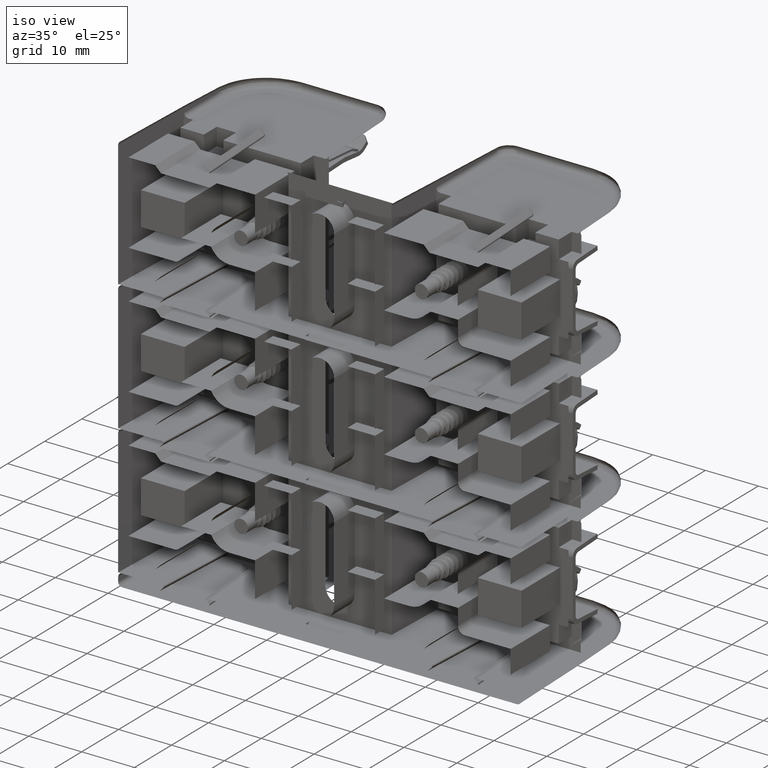
[diagram: clean part render]
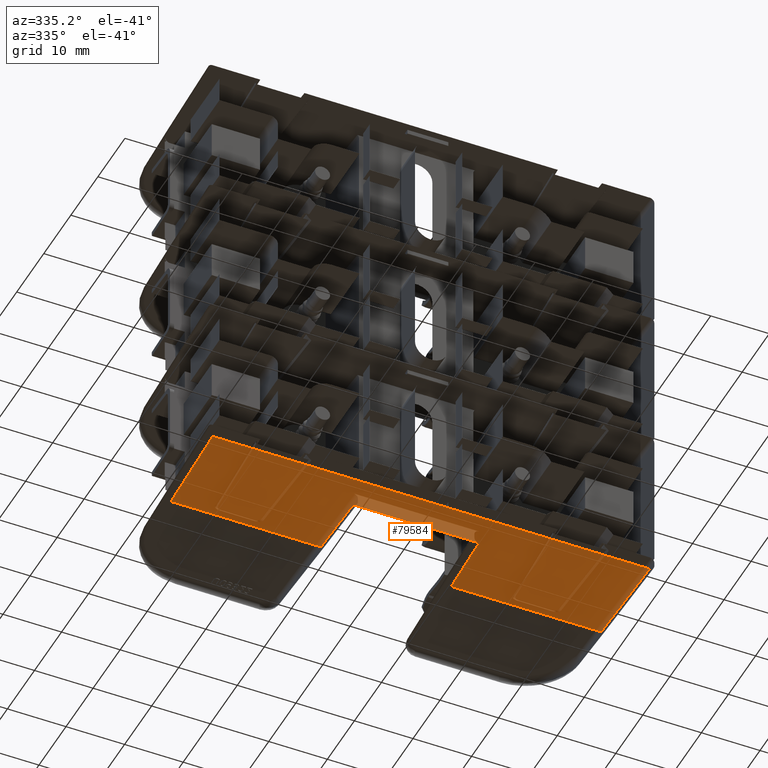
[diagram: tour spotlight — one face highlighted and labeled with its STEP entity id]
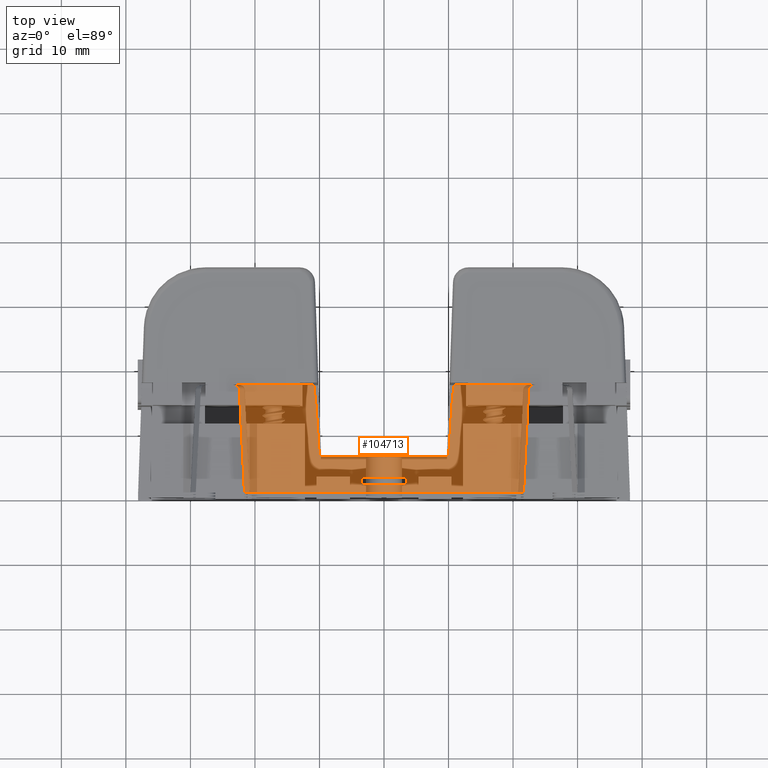
[diagram: tour spotlight — one face highlighted and labeled with its STEP entity id]
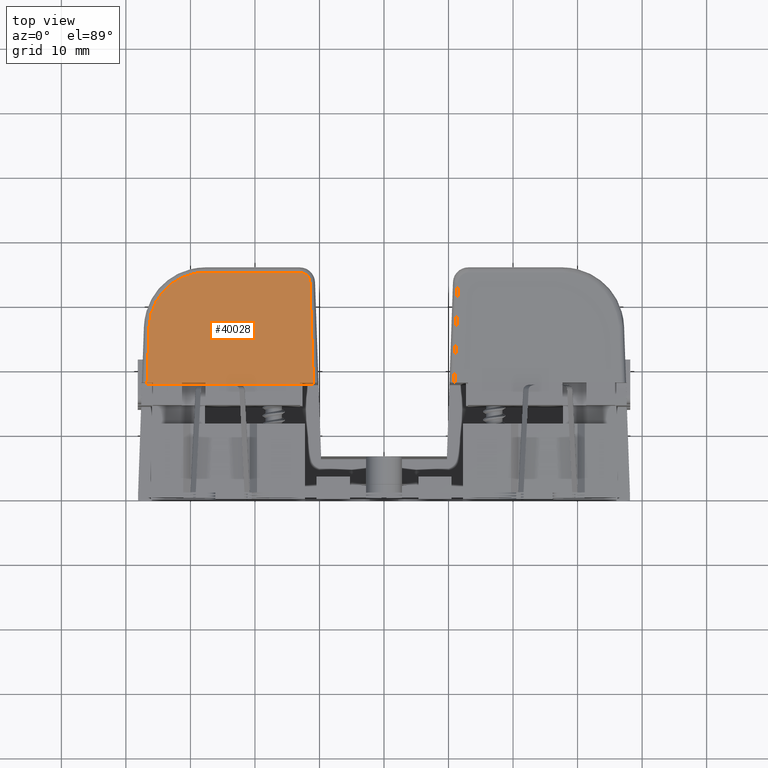
[diagram: tour spotlight — one face highlighted and labeled with its STEP entity id]
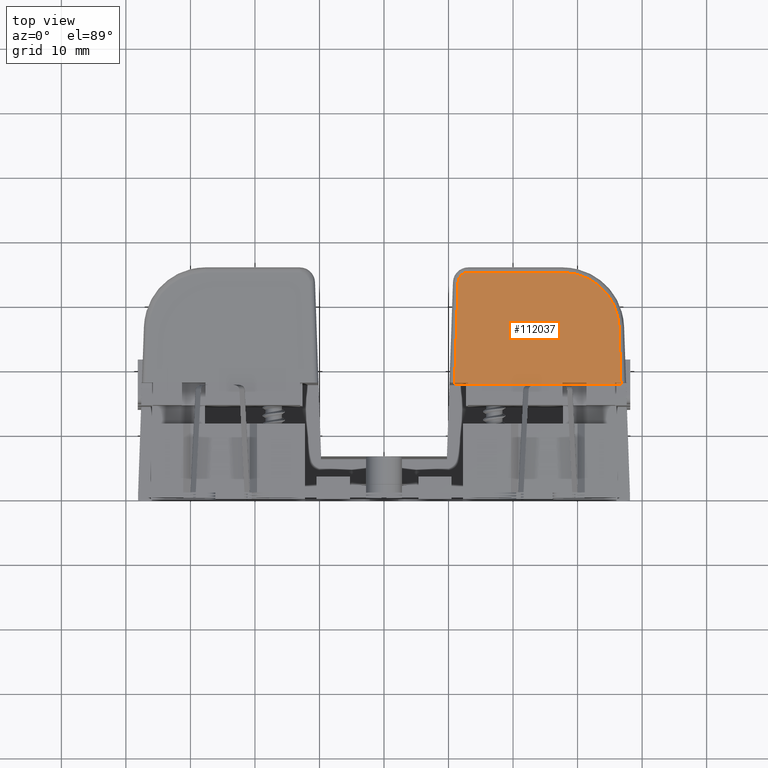
[diagram: tour spotlight — one face highlighted and labeled with its STEP entity id]
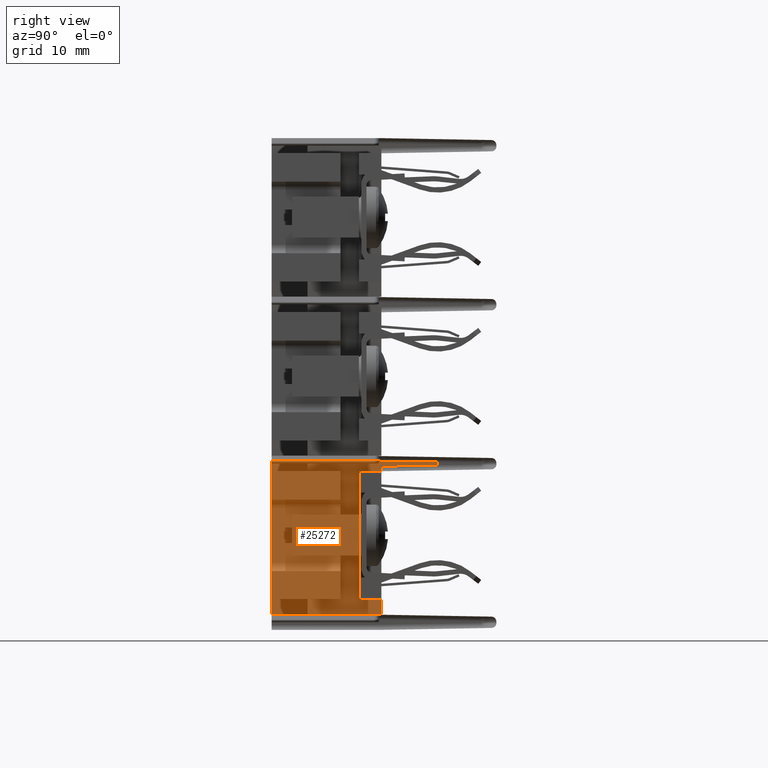
[diagram: tour spotlight — one face highlighted and labeled with its STEP entity id]
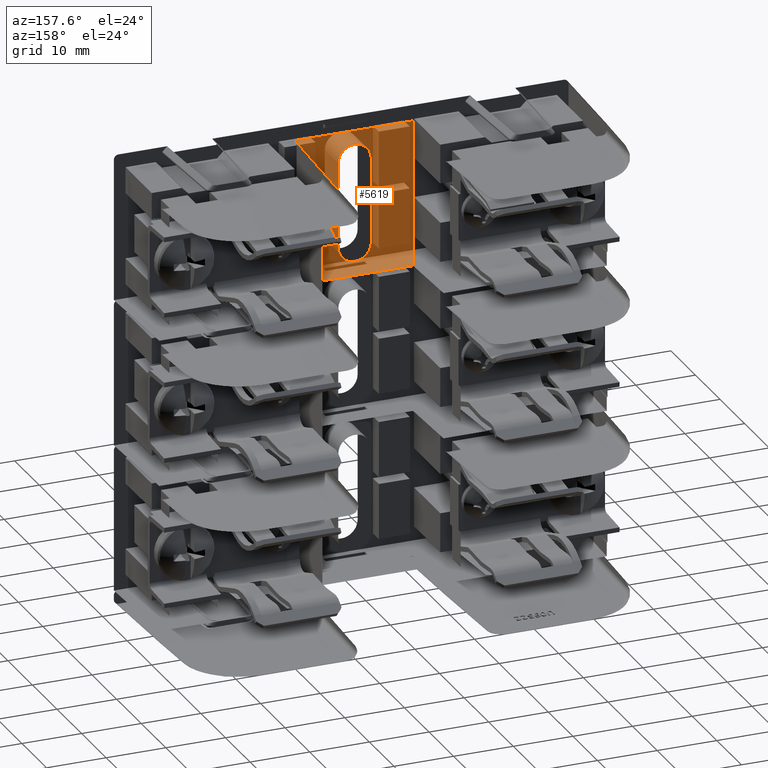
[diagram: tour spotlight — one face highlighted and labeled with its STEP entity id]
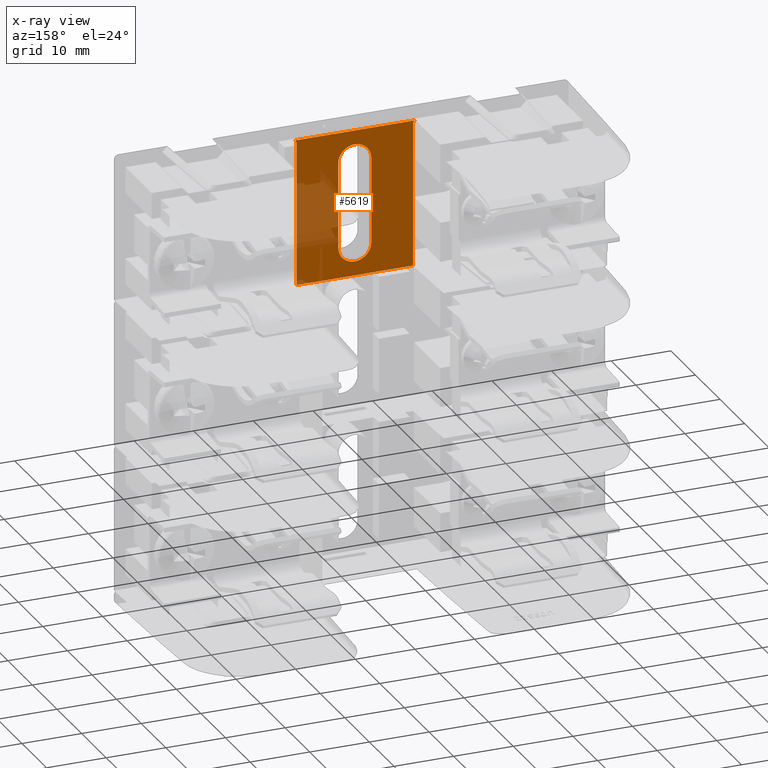
[diagram: x-ray of the same camera — body ghosted, this tour face saturated]
A machine part: a face-by-face anatomy tour. The part has 2342 B-rep faces; the first image is the clean iso view, then the 6 largest visible faces are spotlighted one at a time (largest first), each with its STEP entity span.

Face 1 — auxiliary view, entity #79584. In plain terms, the highlighted planar face has unit normal (0, 0, 1).
Definition (entity closure, byte-faithful):
#6530 = EDGE_CURVE ( 'NONE', #102638, #109156, #22613, .T. ) ;
#7340 = DIRECTION ( 'NONE',  ( -1.000000000000000000, -0.0000000000000000000, 0.0000000000000000000 ) ) ;
#7759 = DIRECTION ( 'NONE',  ( 1.000000000000000000, 0.0000000000000000000, -0.0000000000000000000 ) ) ;
#11457 = LINE ( 'NONE', #17087, #60960 ) ;
#12110 = CARTESIAN_POINT ( 'NONE',  ( -1.446082526557243200, 0.6559999793982642700, -1.014497639274923900 ) ) ;
#13697 = VECTOR ( 'NONE', #34997, 39.37007874015748100 ) ;
#17087 = CARTESIAN_POINT ( 'NONE',  ( 1.500000000000000200, 0.0000000000000000000, -1.014500000000000000 ) ) ;
#17355 = PLANE ( 'NONE',  #30203 ) ;
#17554 = FACE_OUTER_BOUND ( 'NONE', #21973, .T. ) ;
#20278 = CARTESIAN_POINT ( 'NONE',  ( 1.468981104126736700, 0.0000000000000000000, -1.014500000000000000 ) ) ;
#20520 = VECTOR ( 'NONE', #7340, 39.37007874015748100 ) ;
#21174 = ORIENTED_EDGE ( 'NONE', *, *, #74925, .T. ) ;
#21261 = EDGE_CURVE ( 'NONE', #76147, #25467, #92438, .T. ) ;
#21774 = CARTESIAN_POINT ( 'NONE',  ( 0.4379174734427561100, 0.6557294670984865600, -1.014500000000000000 ) ) ;
#21973 = EDGE_LOOP ( 'NONE', ( #86401, #21174, #23121, #88694, #118091, #24180, #30232, #65704 ) ) ;
#22613 = LINE ( 'NONE', #21774, #45793 ) ;
#23121 = ORIENTED_EDGE ( 'NONE', *, *, #70066, .T. ) ;
#24180 = ORIENTED_EDGE ( 'NONE', *, *, #30378, .T. ) ;
#25467 = VERTEX_POINT ( 'NONE', #111408 ) ;
#28700 = DIRECTION ( 'NONE',  ( -1.000000000000000000, -0.0000000000000000000, 0.0000000000000000000 ) ) ;
#29505 = LINE ( 'NONE', #93637, #82014 ) ;
#30203 = AXIS2_PLACEMENT_3D ( 'NONE', #126127, #67041, #7759 ) ;
#30232 = ORIENTED_EDGE ( 'NONE', *, *, #37362, .T. ) ;
#30378 = EDGE_CURVE ( 'NONE', #68804, #108886, #72739, .T. ) ;
#32457 = DIRECTION ( 'NONE',  ( -1.000000000000000000, -0.0000000000000000000, 0.0000000000000000000 ) ) ;
#34551 = DIRECTION ( 'NONE',  ( -0.03489949670250072600, 0.9993908270190957600, 0.0000000000000000000 ) ) ;
#34997 = DIRECTION ( 'NONE',  ( -0.03489949670249987300, -0.9993908270190957600, 0.0000000000000000000 ) ) ;
#37362 = EDGE_CURVE ( 'NONE', #108886, #102638, #65848, .T. ) ;
#44401 = VECTOR ( 'NONE', #28700, 39.37007874015748100 ) ;
#45793 = VECTOR ( 'NONE', #72658, 39.37007874015748900 ) ;
#46801 = LINE ( 'NONE', #88059, #20520 ) ;
#48129 = EDGE_CURVE ( 'NONE', #109156, #94731, #46801, .T. ) ;
#56664 = EDGE_CURVE ( 'NONE', #25467, #68804, #11457, .T. ) ;
#60960 = VECTOR ( 'NONE', #86101, 39.37007874015748100 ) ;
#62757 = VECTOR ( 'NONE', #32457, 39.37007874015748100 ) ;
#65704 = ORIENTED_EDGE ( 'NONE', *, *, #6530, .T. ) ;
#65848 = LINE ( 'NONE', #101035, #62757 ) ;
#66371 = CARTESIAN_POINT ( 'NONE',  ( 1.468981104126736700, 0.0000000000000000000, -1.014500000000000000 ) ) ;
#67041 = DIRECTION ( 'NONE',  ( 0.0000000000000000000, 0.0000000000000000000, 1.000000000000000000 ) ) ;
#68804 = VERTEX_POINT ( 'NONE', #66371 ) ;
#70066 = EDGE_CURVE ( 'NONE', #81950, #76147, #99879, .T. ) ;
#72658 = DIRECTION ( 'NONE',  ( -0.03489949670250103900, -0.9993908270190957600, 0.0000000000000000000 ) ) ;
#72739 = LINE ( 'NONE', #20278, #95839 ) ;
#74925 = EDGE_CURVE ( 'NONE', #94731, #81950, #29505, .T. ) ;
#76147 = VERTEX_POINT ( 'NONE', #12110 ) ;
#77453 = CARTESIAN_POINT ( 'NONE',  ( 0.4379174734427562800, 0.6559999793982643800, -1.014497639274924100 ) ) ;
#77884 = CARTESIAN_POINT ( 'NONE',  ( 1.500000000000000200, 0.6557294670984865600, -1.014500000000000000 ) ) ;
#79584 = ADVANCED_FACE ( 'NONE', ( #17554 ), #17355, .T. ) ;
#81950 = VERTEX_POINT ( 'NONE', #122658 ) ;
#82014 = VECTOR ( 'NONE', #34551, 39.37007874015748900 ) ;
#86101 = DIRECTION ( 'NONE',  ( 1.000000000000000000, 0.0000000000000000000, -0.0000000000000000000 ) ) ;
#86401 = ORIENTED_EDGE ( 'NONE', *, *, #48129, .T. ) ;
#88059 = CARTESIAN_POINT ( 'NONE',  ( 1.500000000000000200, 0.2179999999999996400, -1.014500000000000000 ) ) ;
#88694 = ORIENTED_EDGE ( 'NONE', *, *, #21261, .T. ) ;
#92438 = LINE ( 'NONE', #104043, #13697 ) ;
#93637 = CARTESIAN_POINT ( 'NONE',  ( -0.4226316236224647000, 0.2179999999999996400, -1.014500000000000000 ) ) ;
#94731 = VERTEX_POINT ( 'NONE', #104031 ) ;
#95839 = VECTOR ( 'NONE', #99175, 39.37007874015748100 ) ;
#99175 = DIRECTION ( 'NONE',  ( -0.03489949670250112200, 0.9993908270190957600, 0.0000000000000000000 ) ) ;
#99879 = LINE ( 'NONE', #77884, #44401 ) ;
#101035 = CARTESIAN_POINT ( 'NONE',  ( 1.500000000000000200, 0.6557294670984865600, -1.014500000000000000 ) ) ;
#102638 = VERTEX_POINT ( 'NONE', #77453 ) ;
#104031 = CARTESIAN_POINT ( 'NONE',  ( -0.4226316236224647000, 0.2179999999999996400, -1.014500000000000000 ) ) ;
#104043 = CARTESIAN_POINT ( 'NONE',  ( -1.446082526557243200, 0.6557294670984865600, -1.014500000000000000 ) ) ;
#108886 = VERTEX_POINT ( 'NONE', #111851 ) ;
#109156 = VERTEX_POINT ( 'NONE', #124331 ) ;
#111408 = CARTESIAN_POINT ( 'NONE',  ( -1.468981104126735800, 0.0000000000000000000, -1.014500000000000000 ) ) ;
#111851 = CARTESIAN_POINT ( 'NONE',  ( 1.446082526557243500, 0.6559999793982641500, -1.014497639274923900 ) ) ;
#118091 = ORIENTED_EDGE ( 'NONE', *, *, #56664, .T. ) ;
#122658 = CARTESIAN_POINT ( 'NONE',  ( -0.4379174734427565600, 0.6559999793982644900, -1.014497639274924100 ) ) ;
#124331 = CARTESIAN_POINT ( 'NONE',  ( 0.4226316236224642600, 0.2179999999999996400, -1.014500000000000000 ) ) ;
#126127 = CARTESIAN_POINT ( 'NONE',  ( 1.500000000000000200, 0.0000000000000000000, -1.014500000000000000 ) ) ;

Face 2 — top view, entity #104713. In plain terms, the highlighted planar face has unit normal (0, 0, -1).
Definition (entity closure, byte-faithful):
#65 = VERTEX_POINT ( 'NONE', #124539 ) ;
#118 = CARTESIAN_POINT ( 'NONE',  ( 0.1375000000000000900, 0.0000000000000000000, 1.986499999999999900 ) ) ;
#3693 = ORIENTED_EDGE ( 'NONE', *, *, #27616, .T. ) ;
#5294 = CARTESIAN_POINT ( 'NONE',  ( -0.3946083140209540900, 0.2179999999999996700, 1.986499999999999900 ) ) ;
#5528 = VECTOR ( 'NONE', #96669, 39.37007874015748100 ) ;
#5877 = EDGE_CURVE ( 'NONE', #87794, #118547, #39752, .T. ) ;
#6066 = DIRECTION ( 'NONE',  ( -1.000000000000000000, 0.0000000000000000000, -0.0000000000000000000 ) ) ;
#6633 = DIRECTION ( 'NONE',  ( 1.000000000000000000, -0.0000000000000000000, 0.0000000000000000000 ) ) ;
#7161 = DIRECTION ( 'NONE',  ( 1.000000000000000000, -0.0000000000000000000, 0.0000000000000000000 ) ) ;
#7756 = CARTESIAN_POINT ( 'NONE',  ( 1.500000000000000200, 0.0000000000000000000, 1.986499999999999900 ) ) ;
#9177 = EDGE_CURVE ( 'NONE', #23511, #37330, #94136, .T. ) ;
#9996 = VECTOR ( 'NONE', #7161, 39.37007874015748100 ) ;
#10262 = CARTESIAN_POINT ( 'NONE',  ( -0.8515000000000010300, -6.669545818764882400E-020, 1.986499999999999700 ) ) ;
#10616 = EDGE_LOOP ( 'NONE', ( #83866, #94190, #126881, #3693 ) ) ;
#12015 = VERTEX_POINT ( 'NONE', #108979 ) ;
#14074 = CARTESIAN_POINT ( 'NONE',  ( 0.3946083140209538700, 0.2179999999999996400, 1.986499999999999900 ) ) ;
#15131 = EDGE_CURVE ( 'NONE', #72905, #40067, #127313, .T. ) ;
#15495 = EDGE_CURVE ( 'NONE', #40067, #126032, #65722, .T. ) ;
#17830 = EDGE_CURVE ( 'NONE', #37330, #65, #30664, .T. ) ;
#18994 = VECTOR ( 'NONE', #31868, 39.37007874015748100 ) ;
#19138 = EDGE_CURVE ( 'NONE', #36050, #65, #44327, .T. ) ;
#20674 = CARTESIAN_POINT ( 'NONE',  ( -0.9006972032994289300, 0.6559999999999998100, 1.986499999999999700 ) ) ;
#21071 = CARTESIAN_POINT ( 'NONE',  ( -0.4302952999153155700, 0.6559999999999996900, 1.986499999999999900 ) ) ;
#21469 = EDGE_CURVE ( 'NONE', #118547, #69651, #79977, .T. ) ;
#22027 = VECTOR ( 'NONE', #52753, 39.37007874015748100 ) ;
#23511 = VERTEX_POINT ( 'NONE', #98992 ) ;
#27616 = EDGE_CURVE ( 'NONE', #12015, #72905, #30914, .T. ) ;
#29741 = DIRECTION ( 'NONE',  ( 1.000000000000000000, -0.0000000000000000000, 0.0000000000000000000 ) ) ;
#30664 = LINE ( 'NONE', #79618, #83157 ) ;
#30914 = LINE ( 'NONE', #124389, #80340 ) ;
#31868 = DIRECTION ( 'NONE',  ( 1.000000000000000000, -0.0000000000000000000, 0.0000000000000000000 ) ) ;
#32241 = CARTESIAN_POINT ( 'NONE',  ( 0.4102892772347351800, 0.5035276966052659700, 1.986499999999999700 ) ) ;
#33814 = DIRECTION ( 'NONE',  ( 0.0000000000000000000, 0.0000000000000000000, -1.000000000000000000 ) ) ;
#34805 = EDGE_CURVE ( 'NONE', #83762, #77336, #70994, .T. ) ;
#36050 = VERTEX_POINT ( 'NONE', #10262 ) ;
#36691 = CARTESIAN_POINT ( 'NONE',  ( -0.1375000000000000400, 0.04700000000000000700, 1.986499999999999900 ) ) ;
#36987 = CARTESIAN_POINT ( 'NONE',  ( 1.500000000000000200, 0.2179999999999996400, 1.986499999999999900 ) ) ;
#37330 = VERTEX_POINT ( 'NONE', #120923 ) ;
#38878 = EDGE_CURVE ( 'NONE', #77336, #118015, #66173, .T. ) ;
#38967 = CARTESIAN_POINT ( 'NONE',  ( 0.8833105150937808900, 0.6441275854807315700, 1.986499999999999500 ) ) ;
#39752 =( BOUNDED_CURVE ( )  B_SPLINE_CURVE ( 3, ( #40612, #89702, #20674, #50508 ),
 .UNSPECIFIED., .F., .F. ) 
 B_SPLINE_CURVE_WITH_KNOTS ( ( 4, 4 ),
 ( 0.03490658503989001200, 1.570796326794887000 ),
 .UNSPECIFIED. ) 
 CURVE ( )  GEOMETRIC_REPRESENTATION_ITEM ( )  RATIONAL_B_SPLINE_CURVE ( ( 1.000000000000000000, 0.8128932002257702700, 0.8128932002257702700, 1.000000000000000000 ) ) 
 REPRESENTATION_ITEM ( '' )  );
#40067 = VERTEX_POINT ( 'NONE', #36691 ) ;
#40469 = CARTESIAN_POINT ( 'NONE',  ( -0.8824669823608298800, 0.6270469849010752400, 1.986499999999999900 ) ) ;
#40612 = CARTESIAN_POINT ( 'NONE',  ( -0.8824669823608298800, 0.6270469849010752400, 1.986499999999999900 ) ) ;
#42175 = ORIENTED_EDGE ( 'NONE', *, *, #34805, .T. ) ;
#44327 = LINE ( 'NONE', #7756, #5528 ) ;
#49251 = ORIENTED_EDGE ( 'NONE', *, *, #17830, .T. ) ;
#50508 = CARTESIAN_POINT ( 'NONE',  ( -0.9248675442112799200, 0.6560000000000000300, 1.986499999999999900 ) ) ;
#50658 = VECTOR ( 'NONE', #29741, 39.37007874015748100 ) ;
#50723 = VECTOR ( 'NONE', #87812, 39.37007874015748100 ) ;
#51782 = EDGE_CURVE ( 'NONE', #69651, #83762, #95407, .T. ) ;
#52666 = EDGE_LOOP ( 'NONE', ( #105819, #93706, #117606, #42175, #53483, #115494, #106721, #49251, #70002, #80532 ) ) ;
#52753 = DIRECTION ( 'NONE',  ( -0.04932531220227890500, 0.9987827659587182900, 0.0000000000000000000 ) ) ;
#53483 = ORIENTED_EDGE ( 'NONE', *, *, #38878, .T. ) ;
#54609 = CARTESIAN_POINT ( 'NONE',  ( -0.4227122839482715400, 0.6559999999999968100, 1.986500000000000200 ) ) ;
#57438 = EDGE_CURVE ( 'NONE', #36050, #87794, #74544, .T. ) ;
#58498 = DIRECTION ( 'NONE',  ( -0.04932531220227890500, -0.9987827659587182900, 0.0000000000000000000 ) ) ;
#60143 = FACE_BOUND ( 'NONE', #10616, .T. ) ;
#62068 = CARTESIAN_POINT ( 'NONE',  ( 0.3946083140209538700, 0.2179999999999996400, 1.986499999999999900 ) ) ;
#65722 = LINE ( 'NONE', #106086, #9996 ) ;
#66173 =( BOUNDED_CURVE ( )  B_SPLINE_CURVE ( 3, ( #62068, #32241, #121140, #71927 ),
 .UNSPECIFIED., .F., .F. ) 
 B_SPLINE_CURVE_WITH_KNOTS ( ( 4, 4 ),
 ( 2.423426612368076800, 3.140983573351228100 ),
 .UNSPECIFIED. ) 
 CURVE ( )  GEOMETRIC_REPRESENTATION_ITEM ( )  RATIONAL_B_SPLINE_CURVE ( ( 1.000000000000000000, 0.9575509567925388800, 0.9575509567925388800, 1.000000000000000000 ) ) 
 REPRESENTATION_ITEM ( '' )  );
#67927 = VECTOR ( 'NONE', #6633, 39.37007874015748100 ) ;
#69014 = EDGE_CURVE ( 'NONE', #126032, #12015, #126361, .T. ) ;
#69651 = VERTEX_POINT ( 'NONE', #21071 ) ;
#70002 = ORIENTED_EDGE ( 'NONE', *, *, #19138, .F. ) ;
#70994 = LINE ( 'NONE', #36987, #67927 ) ;
#71927 = CARTESIAN_POINT ( 'NONE',  ( 0.4302952999153157900, 0.6560000000000065800, 1.986499999999999900 ) ) ;
#72905 = VERTEX_POINT ( 'NONE', #90973 ) ;
#73123 = CARTESIAN_POINT ( 'NONE',  ( 0.8824669823608297700, 0.6270469849010749100, 1.986499999999999900 ) ) ;
#74544 = LINE ( 'NONE', #81645, #22027 ) ;
#74810 = VECTOR ( 'NONE', #100916, 39.37007874015748100 ) ;
#77336 = VERTEX_POINT ( 'NONE', #14074 ) ;
#78935 = CARTESIAN_POINT ( 'NONE',  ( 1.500000000000000200, 0.6560000000000000300, 1.986499999999999900 ) ) ;
#79618 = CARTESIAN_POINT ( 'NONE',  ( 0.8824669823608298800, 0.6270469849010751300, 1.986499999999999900 ) ) ;
#79977 = LINE ( 'NONE', #78935, #50658 ) ;
#80340 = VECTOR ( 'NONE', #6066, 39.37007874015748100 ) ;
#80532 = ORIENTED_EDGE ( 'NONE', *, *, #57438, .T. ) ;
#81318 = CARTESIAN_POINT ( 'NONE',  ( -0.9248675442112799200, 0.6560000000000000300, 1.986499999999999900 ) ) ;
#81645 = CARTESIAN_POINT ( 'NONE',  ( -0.8515000000000012600, 0.0000000000000000000, 1.986499999999999900 ) ) ;
#82589 = PLANE ( 'NONE',  #112941 ) ;
#83157 = VECTOR ( 'NONE', #58498, 39.37007874015748100 ) ;
#83762 = VERTEX_POINT ( 'NONE', #87432 ) ;
#83866 = ORIENTED_EDGE ( 'NONE', *, *, #15131, .T. ) ;
#87432 = CARTESIAN_POINT ( 'NONE',  ( -0.3946083140209540900, 0.2179999999999996700, 1.986499999999999900 ) ) ;
#87794 = VERTEX_POINT ( 'NONE', #40469 ) ;
#87812 = DIRECTION ( 'NONE',  ( 0.0000000000000000000, 1.000000000000000000, 0.0000000000000000000 ) ) ;
#89702 = CARTESIAN_POINT ( 'NONE',  ( -0.8833105150937813300, 0.6441275854807315700, 1.986499999999999700 ) ) ;
#90973 = CARTESIAN_POINT ( 'NONE',  ( -0.1375000000000000400, 0.08699999999999999400, 1.986499999999999900 ) ) ;
#92901 = CARTESIAN_POINT ( 'NONE',  ( 1.500000000000000200, 0.0000000000000000000, 1.986499999999999900 ) ) ;
#93026 = CARTESIAN_POINT ( 'NONE',  ( 0.4302952999153157900, 0.6560000000000065800, 1.986499999999999900 ) ) ;
#93706 = ORIENTED_EDGE ( 'NONE', *, *, #21469, .T. ) ;
#94136 =( BOUNDED_CURVE ( )  B_SPLINE_CURVE ( 3, ( #97962, #108420, #38967, #73123 ),
 .UNSPECIFIED., .F., .F. ) 
 B_SPLINE_CURVE_WITH_KNOTS ( ( 4, 4 ),
 ( 4.712388980384689700, 6.248278722139705400 ),
 .UNSPECIFIED. ) 
 CURVE ( )  GEOMETRIC_REPRESENTATION_ITEM ( )  RATIONAL_B_SPLINE_CURVE ( ( 1.000000000000000000, 0.8128932002257661700, 0.8128932002257661700, 1.000000000000000000 ) ) 
 REPRESENTATION_ITEM ( '' )  );
#94190 = ORIENTED_EDGE ( 'NONE', *, *, #15495, .T. ) ;
#95163 = EDGE_CURVE ( 'NONE', #118015, #23511, #120950, .T. ) ;
#95407 =( BOUNDED_CURVE ( )  B_SPLINE_CURVE ( 3, ( #123603, #54609, #113699, #5294 ),
 .UNSPECIFIED., .F., .F. ) 
 B_SPLINE_CURVE_WITH_KNOTS ( ( 4, 4 ),
 ( 0.0006090802385741380000, 0.7181660412217143500 ),
 .UNSPECIFIED. ) 
 CURVE ( )  GEOMETRIC_REPRESENTATION_ITEM ( )  RATIONAL_B_SPLINE_CURVE ( ( 1.000000000000000000, 0.9575509567925402100, 0.9575509567925402100, 1.000000000000000000 ) ) 
 REPRESENTATION_ITEM ( '' )  );
#96669 = DIRECTION ( 'NONE',  ( 1.000000000000000000, 0.0000000000000000000, 0.0000000000000000000 ) ) ;
#97962 = CARTESIAN_POINT ( 'NONE',  ( 0.9248675442112800300, 0.6560000000000000300, 1.986499999999999900 ) ) ;
#98992 = CARTESIAN_POINT ( 'NONE',  ( 0.9248675442112800300, 0.6560000000000000300, 1.986499999999999900 ) ) ;
#100851 = CARTESIAN_POINT ( 'NONE',  ( 1.500000000000000200, 0.6560000000000000300, 1.986499999999999900 ) ) ;
#100916 = DIRECTION ( 'NONE',  ( -0.0000000000000000000, -1.000000000000000000, -0.0000000000000000000 ) ) ;
#102875 = DIRECTION ( 'NONE',  ( -1.000000000000000000, 0.0000000000000000000, -0.0000000000000000000 ) ) ;
#104713 = ADVANCED_FACE ( 'NONE', ( #109527, #60143 ), #82589, .T. ) ;
#105819 = ORIENTED_EDGE ( 'NONE', *, *, #5877, .T. ) ;
#106086 = CARTESIAN_POINT ( 'NONE',  ( 1.500000000000000200, 0.04699999999999999300, 1.986499999999999900 ) ) ;
#106721 = ORIENTED_EDGE ( 'NONE', *, *, #9177, .T. ) ;
#108420 = CARTESIAN_POINT ( 'NONE',  ( 0.9006972032994290400, 0.6560000000000001400, 1.986499999999999500 ) ) ;
#108979 = CARTESIAN_POINT ( 'NONE',  ( 0.1375000000000000400, 0.08699999999999999400, 1.986499999999999900 ) ) ;
#109527 = FACE_OUTER_BOUND ( 'NONE', #52666, .T. ) ;
#112305 = CARTESIAN_POINT ( 'NONE',  ( 0.1375000000000000400, 0.04700000000000000700, 1.986499999999999900 ) ) ;
#112941 = AXIS2_PLACEMENT_3D ( 'NONE', #92901, #33814, #102875 ) ;
#113699 = CARTESIAN_POINT ( 'NONE',  ( -0.4102892772347349100, 0.5035276966052491000, 1.986500000000000200 ) ) ;
#115494 = ORIENTED_EDGE ( 'NONE', *, *, #95163, .T. ) ;
#117606 = ORIENTED_EDGE ( 'NONE', *, *, #51782, .T. ) ;
#118015 = VERTEX_POINT ( 'NONE', #93026 ) ;
#118547 = VERTEX_POINT ( 'NONE', #81318 ) ;
#120413 = CARTESIAN_POINT ( 'NONE',  ( -0.1375000000000000900, 0.0000000000000000000, 1.986499999999999900 ) ) ;
#120923 = CARTESIAN_POINT ( 'NONE',  ( 0.8824669823608297700, 0.6270469849010749100, 1.986499999999999900 ) ) ;
#120950 = LINE ( 'NONE', #100851, #18994 ) ;
#121140 = CARTESIAN_POINT ( 'NONE',  ( 0.4227122839482720900, 0.6560000000000145700, 1.986499999999999700 ) ) ;
#123603 = CARTESIAN_POINT ( 'NONE',  ( -0.4302952999153155700, 0.6559999999999996900, 1.986499999999999900 ) ) ;
#124389 = CARTESIAN_POINT ( 'NONE',  ( 1.500000000000000200, 0.08699999999999999400, 1.986499999999999900 ) ) ;
#124539 = CARTESIAN_POINT ( 'NONE',  ( 0.8515000000000012600, -3.414809992080329000E-017, 1.986499999999999900 ) ) ;
#126032 = VERTEX_POINT ( 'NONE', #112305 ) ;
#126361 = LINE ( 'NONE', #118, #50723 ) ;
#126881 = ORIENTED_EDGE ( 'NONE', *, *, #69014, .T. ) ;
#127313 = LINE ( 'NONE', #120413, #74810 ) ;

Face 3 — top view, entity #40028. In plain terms, the highlighted planar face has unit normal (0, -0.0175, -0.9998).
Definition (entity closure, byte-faithful):
#1053 = VECTOR ( 'NONE', #90118, 39.37007874015748100 ) ;
#2668 = CARTESIAN_POINT ( 'NONE',  ( -0.4521453927753435500, 1.281704793395110700, 1.975578282205391800 ) ) ;
#2797 = AXIS2_PLACEMENT_3D ( 'NONE', #95293, #36242, #105290 ) ;
#3093 = CARTESIAN_POINT ( 'NONE',  ( -0.4602799726756141600, 1.310443878379387900, 1.975076639611013500 ) ) ;
#6120 = CARTESIAN_POINT ( 'NONE',  ( -1.427898740956051100, 1.061899306718431900, 1.979415001246910500 ) ) ;
#6532 = CARTESIAN_POINT ( 'NONE',  ( -1.384391516521215500, 1.175589083102219100, 1.977430538818457900 ) ) ;
#6962 = CARTESIAN_POINT ( 'NONE',  ( -1.250298313294746100, 1.302259530460969200, 1.975219497935325000 ) ) ;
#7401 = CARTESIAN_POINT ( 'NONE',  ( -1.131085381475615900, 1.339696284668232100, 1.974566036959935400 ) ) ;
#9249 = CARTESIAN_POINT ( 'NONE',  ( -1.442504797954785600, 0.7587232341355288900, 1.984706959278528000 ) ) ;
#9613 = EDGE_CURVE ( 'NONE', #105963, #39693, #31067, .T. ) ;
#10211 = LINE ( 'NONE', #9249, #85896 ) ;
#11132 = CARTESIAN_POINT ( 'NONE',  ( -0.4521453927753435500, 1.281704793395110700, 1.975578282205391600 ) ) ;
#13068 = CARTESIAN_POINT ( 'NONE',  ( -0.4579476475622539800, 1.305831391993151700, 1.975157150860366300 ) ) ;
#15267 = ORIENTED_EDGE ( 'NONE', *, *, #96909, .T. ) ;
#15738 = LINE ( 'NONE', #27102, #42135 ) ;
#16133 = CARTESIAN_POINT ( 'NONE',  ( -1.426620498650840800, 1.068210780368704200, 1.979304834064553800 ) ) ;
#16596 = CARTESIAN_POINT ( 'NONE',  ( -1.376757644826735800, 1.187510890907692400, 1.977222442889151600 ) ) ;
#17007 = CARTESIAN_POINT ( 'NONE',  ( -1.223333164263495300, 1.314654246426933700, 1.975003147363371100 ) ) ;
#17405 = CARTESIAN_POINT ( 'NONE',  ( -1.089955413704668800, 1.341541024599555600, 1.974533836904658300 ) ) ;
#18099 = VECTOR ( 'NONE', #58220, 39.37007874015748100 ) ;
#19378 = CARTESIAN_POINT ( 'NONE',  ( -1.446082525837534500, 0.6559999999999798200, 1.986499999041639000 ) ) ;
#21071 = CARTESIAN_POINT ( 'NONE',  ( -0.4302952999153155700, 0.6559999999999996900, 1.986499999999999900 ) ) ;
#21469 = EDGE_CURVE ( 'NONE', #118547, #69651, #79977, .T. ) ;
#22589 = CARTESIAN_POINT ( 'NONE',  ( -0.5045502073887151400, 1.341014030370826200, 1.974543035623137300 ) ) ;
#23016 = CARTESIAN_POINT ( 'NONE',  ( -0.4540734351995517900, 1.296846914225082900, 1.975313975503152800 ) ) ;
#24895 = ORIENTED_EDGE ( 'NONE', *, *, #83265, .T. ) ;
#26076 = CARTESIAN_POINT ( 'NONE',  ( -1.423759161688232400, 1.081388904031926400, 1.979074809060379400 ) ) ;
#26482 = CARTESIAN_POINT ( 'NONE',  ( -1.360475337552975700, 1.211297565883954000, 1.976807244933014700 ) ) ;
#26931 = CARTESIAN_POINT ( 'NONE',  ( -1.216765310734134700, 1.317317834801433600, 1.974956654255352500 ) ) ;
#27102 = CARTESIAN_POINT ( 'NONE',  ( 1.500000000000000200, 0.6560000000000000300, 1.986499999999999900 ) ) ;
#29741 = DIRECTION ( 'NONE',  ( 1.000000000000000000, -0.0000000000000000000, 0.0000000000000000000 ) ) ;
#31067 = B_SPLINE_CURVE_WITH_KNOTS ( 'NONE', 3,
 ( #55442, #45504, #104622, #65383, #6120, #75248, #16133, #85164, #26076, #95048, #35986, #105053, #45951, #114959, #55859, #124885, #65827, #6532, #75660, #16596, #85586, #26482, #95477, #36434, #105476, #46361, #115391, #56265, #125306, #66259, #6962, #76069, #17007, #86006, #26931, #95893, #36879, #105900, #46787, #115804, #56705, #125740, #66669, #7401, #76527, #17405 ),
 .UNSPECIFIED., .F., .F.,
 ( 4, 1, 1, 1, 2, 2, 1, 1, 1, 2, 2, 1, 1, 2, 2, 2, 1, 1, 2, 2, 1, 1, 1, 2, 2, 1, 1, 1, 2, 2, 4 ),
 ( 0.0000000000000000000, 0.06249999999999902900, 0.09374999999999823800, 0.1093749999999982700, 0.1171874999999982700, 0.1249999999999982800, 0.1874999999999990300, 0.2187499999999996100, 0.2343749999999996700, 0.2421874999999993100, 0.2499999999999990000, 0.3124999999999952300, 0.3437499999999937300, 0.3593749999999925100, 0.3749999999999913400, 0.4999999999999878400, 0.5624999999999855700, 0.5937499999999839000, 0.6093749999999830100, 0.6249999999999821300, 0.6874999999999833500, 0.7187499999999839000, 0.7343749999999842300, 0.7421874999999846800, 0.7499999999999851200, 0.8124999999999922300, 0.8437499999999957800, 0.8593749999999977800, 0.8671874999999982200, 0.8749999999999985600, 1.000000000000000000 ),
 .UNSPECIFIED. ) ;
#32518 = CARTESIAN_POINT ( 'NONE',  ( -0.4953463525147265300, 1.338643549441240100, 1.974584412521674300 ) ) ;
#32926 = CARTESIAN_POINT ( 'NONE',  ( -0.4521453927753435500, 1.281704793395110700, 1.975578282205391800 ) ) ;
#33120 = CARTESIAN_POINT ( 'NONE',  ( -1.075132455788722500, 0.6560000000000000300, 1.986499999999999700 ) ) ;
#35986 = CARTESIAN_POINT ( 'NONE',  ( -1.413319428926858500, 1.115120512983734500, 1.978486021635992500 ) ) ;
#36242 = DIRECTION ( 'NONE',  ( 0.0000000000000000000, -0.01745240643728331700, -0.9998476951563912700 ) ) ;
#36434 = CARTESIAN_POINT ( 'NONE',  ( -1.320591800673777800, 1.253035287595544200, 1.976078710290582800 ) ) ;
#36879 = CARTESIAN_POINT ( 'NONE',  ( -1.203949934830820700, 1.322288126443234900, 1.974869897492033600 ) ) ;
#39693 = VERTEX_POINT ( 'NONE', #99253 ) ;
#40028 = ADVANCED_FACE ( 'NONE', ( #117297 ), #94856, .T. ) ;
#41256 = EDGE_CURVE ( 'NONE', #72778, #105963, #10211, .T. ) ;
#42124 = CARTESIAN_POINT ( 'NONE',  ( -0.5141076240505273500, 1.341541024599555200, 1.974533836904658300 ) ) ;
#42135 = VECTOR ( 'NONE', #86185, 39.37007874015748100 ) ;
#42555 = CARTESIAN_POINT ( 'NONE',  ( -0.4927007422410197800, 1.337737127891013700, 1.974600234168685900 ) ) ;
#44111 = EDGE_CURVE ( 'NONE', #72778, #95266, #98412, .T. ) ;
#45504 = CARTESIAN_POINT ( 'NONE',  ( -1.433384370331605400, 1.019862342538113000, 1.980148759186063800 ) ) ;
#45951 = CARTESIAN_POINT ( 'NONE',  ( -1.408344858090400800, 1.127794824920984600, 1.978264790698207600 ) ) ;
#46025 = VECTOR ( 'NONE', #106963, 39.37007874015748100 ) ;
#46361 = CARTESIAN_POINT ( 'NONE',  ( -1.291400341884187100, 1.276496424514344400, 1.975669194622375900 ) ) ;
#46787 = CARTESIAN_POINT ( 'NONE',  ( -1.170049661052431800, 1.332166431295873000, 1.974697471039449800 ) ) ;
#50658 = VECTOR ( 'NONE', #29741, 39.37007874015748100 ) ;
#51461 = EDGE_CURVE ( 'NONE', #118547, #95266, #15738, .T. ) ;
#52433 = CARTESIAN_POINT ( 'NONE',  ( -0.4770370497526417200, 1.329928703366162900, 1.974736530725754500 ) ) ;
#55442 = CARTESIAN_POINT ( 'NONE',  ( -1.433745858199237500, 1.009546451465215900, 1.980328823734534000 ) ) ;
#55859 = CARTESIAN_POINT ( 'NONE',  ( -1.406793819622011600, 1.131523763199862000, 1.978199701838435400 ) ) ;
#56265 = CARTESIAN_POINT ( 'NONE',  ( -1.279473352853264500, 1.284642686883392400, 1.975527001083801500 ) ) ;
#56705 = CARTESIAN_POINT ( 'NONE',  ( -1.156732235579012400, 1.335000291705388700, 1.974648005822003300 ) ) ;
#58220 = DIRECTION ( 'NONE',  ( 1.000000000000000000, 0.0000000000000000000, 0.0000000000000000000 ) ) ;
#58938 = DIRECTION ( 'NONE',  ( 0.03489418781261441300, 0.9992388003036509800, -0.01744177813809427700 ) ) ;
#60824 = EDGE_CURVE ( 'NONE', #39693, #81906, #70600, .T. ) ;
#62336 = CARTESIAN_POINT ( 'NONE',  ( -0.5141076240505273500, 1.341541024599555200, 1.974533836904658300 ) ) ;
#62352 = CARTESIAN_POINT ( 'NONE',  ( -0.4640484300996441400, 1.316548052078306800, 1.974970090862765600 ) ) ;
#63874 = B_SPLINE_CURVE_WITH_KNOTS ( 'NONE', 3,
 ( #42124, #120987, #22589, #91598, #32518, #101525, #42555, #111452, #52433, #121421, #62352, #3093, #72193, #13068, #82140, #23016, #92052, #32926 ),
 .UNSPECIFIED., .F., .F.,
 ( 4, 1, 1, 2, 2, 2, 1, 1, 2, 2, 4 ),
 ( 0.0000000000000000000, 0.1250000000000015800, 0.1875000000000004200, 0.2187500000000021900, 0.2500000000000039400, 0.5000000000000125500, 0.6250000000000167600, 0.6875000000000195400, 0.7187500000000214300, 0.7500000000000233100, 1.000000000000000000 ),
 .UNSPECIFIED. ) ;
#65383 = CARTESIAN_POINT ( 'NONE',  ( -1.429517905796726900, 1.053041231316671300, 1.979569619528187800 ) ) ;
#65586 = ORIENTED_EDGE ( 'NONE', *, *, #41256, .T. ) ;
#65827 = CARTESIAN_POINT ( 'NONE',  ( -1.394347786015543100, 1.158502338484306700, 1.977728789055175400 ) ) ;
#66259 = CARTESIAN_POINT ( 'NONE',  ( -1.265036877135858700, 1.293871273684826100, 1.975365915501986700 ) ) ;
#66669 = CARTESIAN_POINT ( 'NONE',  ( -1.152638574944711200, 1.335784175222844300, 1.974634323084310900 ) ) ;
#69172 = ORIENTED_EDGE ( 'NONE', *, *, #21469, .F. ) ;
#69651 = VERTEX_POINT ( 'NONE', #21071 ) ;
#70600 = LINE ( 'NONE', #117324, #18099 ) ;
#72193 = CARTESIAN_POINT ( 'NONE',  ( -0.4588552060648085600, 1.307694200358158000, 1.975124635419406300 ) ) ;
#72778 = VERTEX_POINT ( 'NONE', #19378 ) ;
#75248 = CARTESIAN_POINT ( 'NONE',  ( -1.427140385878132600, 1.065687300772026000, 1.979348881564758200 ) ) ;
#75660 = CARTESIAN_POINT ( 'NONE',  ( -1.379848058254675700, 1.182762144946356300, 1.977305332558234200 ) ) ;
#76069 = CARTESIAN_POINT ( 'NONE',  ( -1.232433229398607300, 1.310740268094687100, 1.975071466109289200 ) ) ;
#76527 = CARTESIAN_POINT ( 'NONE',  ( -1.110613606032250700, 1.341538526432127800, 1.974533880510332300 ) ) ;
#76754 = CARTESIAN_POINT ( 'NONE',  ( 1.500000000000000200, 0.6560000000000000300, 1.986499999999999900 ) ) ;
#78935 = CARTESIAN_POINT ( 'NONE',  ( 1.500000000000000200, 0.6560000000000000300, 1.986499999999999900 ) ) ;
#79868 = LINE ( 'NONE', #11132, #1053 ) ;
#79977 = LINE ( 'NONE', #78935, #50658 ) ;
#81318 = CARTESIAN_POINT ( 'NONE',  ( -0.9248675442112799200, 0.6560000000000000300, 1.986499999999999900 ) ) ;
#81906 = VERTEX_POINT ( 'NONE', #62336 ) ;
#82140 = CARTESIAN_POINT ( 'NONE',  ( -0.4574822782563132700, 1.304808690961464500, 1.975175002173276400 ) ) ;
#83265 = EDGE_CURVE ( 'NONE', #81906, #110282, #63874, .T. ) ;
#85164 = CARTESIAN_POINT ( 'NONE',  ( -1.426369132407067100, 1.069399307966164600, 1.979284088238171000 ) ) ;
#85586 = CARTESIAN_POINT ( 'NONE',  ( -1.375212536019730300, 1.189823709977264600, 1.977182072482125400 ) ) ;
#85896 = VECTOR ( 'NONE', #58938, 39.37007874015747400 ) ;
#86006 = CARTESIAN_POINT ( 'NONE',  ( -1.219397238522651000, 1.316261724894050900, 1.974975088722357400 ) ) ;
#86185 = DIRECTION ( 'NONE',  ( -1.000000000000000000, -0.0000000000000000000, -0.0000000000000000000 ) ) ;
#89975 = ORIENTED_EDGE ( 'NONE', *, *, #9613, .T. ) ;
#90118 = DIRECTION ( 'NONE',  ( 0.03489418781260773800, -0.9992388003036512000, 0.01744177813809418000 ) ) ;
#91598 = CARTESIAN_POINT ( 'NONE',  ( -0.4980813038091195200, 1.339491328616767100, 1.974569614481120000 ) ) ;
#92052 = CARTESIAN_POINT ( 'NONE',  ( -0.4524207268191086100, 1.289440495656164700, 1.975443255020159700 ) ) ;
#92776 = EDGE_LOOP ( 'NONE', ( #65586, #89975, #111030, #24895, #15267, #69172, #111015, #114291 ) ) ;
#94856 = PLANE ( 'NONE',  #2797 ) ;
#95048 = CARTESIAN_POINT ( 'NONE',  ( -1.419538821831555200, 1.097143967803480400, 1.978799803399299100 ) ) ;
#95266 = VERTEX_POINT ( 'NONE', #33120 ) ;
#95293 = CARTESIAN_POINT ( 'NONE',  ( 1.500000000000000200, 0.6560000000000000300, 1.986499999999999900 ) ) ;
#95477 = CARTESIAN_POINT ( 'NONE',  ( -1.345570078080138700, 1.228911172557068500, 1.976499798284915100 ) ) ;
#95893 = CARTESIAN_POINT ( 'NONE',  ( -1.215392852275293900, 1.317858444185214800, 1.974947217883458000 ) ) ;
#96909 = EDGE_CURVE ( 'NONE', #110282, #69651, #79868, .T. ) ;
#98412 = LINE ( 'NONE', #76754, #46025 ) ;
#99253 = CARTESIAN_POINT ( 'NONE',  ( -1.089955413704668800, 1.341541024599555600, 1.974533836904658300 ) ) ;
#101525 = CARTESIAN_POINT ( 'NONE',  ( -0.4935313707526878800, 1.338034987166554400, 1.974595035015692200 ) ) ;
#104622 = CARTESIAN_POINT ( 'NONE',  ( -1.432154914113540800, 1.035247390072984200, 1.979880212182419300 ) ) ;
#105053 = CARTESIAN_POINT ( 'NONE',  ( -1.409885816706534700, 1.124007694935555300, 1.978330895297994800 ) ) ;
#105290 = DIRECTION ( 'NONE',  ( 0.0000000000000000000, 0.9998476951563912700, -0.01745240643728331700 ) ) ;
#105476 = CARTESIAN_POINT ( 'NONE',  ( -1.307558408796290800, 1.264414795062130900, 1.975880080248902700 ) ) ;
#105603 = CARTESIAN_POINT ( 'NONE',  ( -1.433745858199237500, 1.009546451465215900, 1.980328823734534000 ) ) ;
#105900 = CARTESIAN_POINT ( 'NONE',  ( -1.188477488580055500, 1.327449206474217200, 1.974779810504992300 ) ) ;
#105963 = VERTEX_POINT ( 'NONE', #105603 ) ;
#106963 = DIRECTION ( 'NONE',  ( 1.000000000000000000, -0.0000000000000000000, 0.0000000000000000000 ) ) ;
#110282 = VERTEX_POINT ( 'NONE', #2668 ) ;
#111015 = ORIENTED_EDGE ( 'NONE', *, *, #51461, .T. ) ;
#111030 = ORIENTED_EDGE ( 'NONE', *, *, #60824, .T. ) ;
#111452 = CARTESIAN_POINT ( 'NONE',  ( -0.4839538708496923800, 1.334355222770202000, 1.974659265542151300 ) ) ;
#114291 = ORIENTED_EDGE ( 'NONE', *, *, #44111, .F. ) ;
#114959 = CARTESIAN_POINT ( 'NONE',  ( -1.407302127785931200, 1.130314764404683800, 1.978220804990903600 ) ) ;
#115391 = CARTESIAN_POINT ( 'NONE',  ( -1.284271361124349000, 1.281418309438406000, 1.975583282801457500 ) ) ;
#115804 = CARTESIAN_POINT ( 'NONE',  ( -1.160741587229853000, 1.334199034903077200, 1.974661991811512500 ) ) ;
#117297 = FACE_OUTER_BOUND ( 'NONE', #92776, .T. ) ;
#117324 = CARTESIAN_POINT ( 'NONE',  ( 1.500000000000000200, 1.341541024599555600, 1.974533836904657900 ) ) ;
#118547 = VERTEX_POINT ( 'NONE', #81318 ) ;
#120987 = CARTESIAN_POINT ( 'NONE',  ( -0.5102447257015306800, 1.341538432464866500, 1.974533882150537200 ) ) ;
#121421 = CARTESIAN_POINT ( 'NONE',  ( -0.4680396827467829800, 1.321245786647746500, 1.974888091600840900 ) ) ;
#124885 = CARTESIAN_POINT ( 'NONE',  ( -1.401775788791940400, 1.143257242557648600, 1.977994893194411600 ) ) ;
#125306 = CARTESIAN_POINT ( 'NONE',  ( -1.276999921885275000, 1.286259363543541500, 1.975498781887730800 ) ) ;
#125740 = CARTESIAN_POINT ( 'NONE',  ( -1.154054850666129900, 1.335518938678185800, 1.974638952805418200 ) ) ;

Face 4 — top view, entity #112037. In plain terms, the highlighted planar face has unit normal (0, -0.0175, -0.9998).
Definition (entity closure, byte-faithful):
#4075 = CARTESIAN_POINT ( 'NONE',  ( 1.146292591182190400, 1.336898863538972900, 1.974614866127377700 ) ) ;
#4490 = CARTESIAN_POINT ( 'NONE',  ( 1.264946594956427400, 1.293721198262243400, 1.975368535078232200 ) ) ;
#4902 = CARTESIAN_POINT ( 'NONE',  ( 1.397991460623717600, 1.150862542624003300, 1.977862142187955600 ) ) ;
#5300 = EDGE_CURVE ( 'NONE', #118015, #49232, #81924, .T. ) ;
#5337 = CARTESIAN_POINT ( 'NONE',  ( 1.433022401038673000, 1.030191972193631000, 1.979968454829742500 ) ) ;
#6155 = VECTOR ( 'NONE', #121567, 39.37007874015748900 ) ;
#6290 = PLANE ( 'NONE',  #14722 ) ;
#6434 = CARTESIAN_POINT ( 'NONE',  ( 0.4521453927753433800, 1.281704793395110700, 1.975578282205391800 ) ) ;
#6702 = DIRECTION ( 'NONE',  ( 0.0000000000000000000, -0.01745240643728331700, -0.9998476951563912700 ) ) ;
#6853 = CARTESIAN_POINT ( 'NONE',  ( 0.4788701809271404000, 1.330861250475477300, 1.974720253055412400 ) ) ;
#7140 = LINE ( 'NONE', #94988, #96683 ) ;
#14057 = CARTESIAN_POINT ( 'NONE',  ( 1.150029253480228800, 1.336257627077472200, 1.974626058951447500 ) ) ;
#14474 = CARTESIAN_POINT ( 'NONE',  ( 1.272165635666138200, 1.289334944927393400, 1.975445097414983800 ) ) ;
#14722 = AXIS2_PLACEMENT_3D ( 'NONE', #65995, #6702, #75818 ) ;
#14910 = CARTESIAN_POINT ( 'NONE',  ( 1.403964503421578000, 1.138027188984424900, 1.978086184119110200 ) ) ;
#16028 = CARTESIAN_POINT ( 'NONE',  ( 0.4522827965391670300, 1.285565248106596900, 1.975510897717750700 ) ) ;
#16906 = CARTESIAN_POINT ( 'NONE',  ( 0.4878998800251743700, 1.335742315969647800, 1.974635053740293000 ) ) ;
#18994 = VECTOR ( 'NONE', #31868, 39.37007874015748100 ) ;
#19069 = EDGE_CURVE ( 'NONE', #27161, #23511, #7140, .T. ) ;
#19838 = EDGE_CURVE ( 'NONE', #98334, #75551, #105003, .T. ) ;
#23511 = VERTEX_POINT ( 'NONE', #98992 ) ;
#24013 = CARTESIAN_POINT ( 'NONE',  ( 1.177995386419382600, 1.330399752007760200, 1.974728308541130900 ) ) ;
#24141 = ORIENTED_EDGE ( 'NONE', *, *, #19069, .T. ) ;
#24425 = CARTESIAN_POINT ( 'NONE',  ( 1.312263794083526000, 1.261074677143116900, 1.975938382224046400 ) ) ;
#24835 = CARTESIAN_POINT ( 'NONE',  ( 1.405700001099198900, 1.134080966800474300, 1.978155065683552900 ) ) ;
#26836 = CARTESIAN_POINT ( 'NONE',  ( 0.4908315461370759100, 1.337013704601954600, 1.974612861569166700 ) ) ;
#27137 = EDGE_CURVE ( 'NONE', #27161, #68405, #48002, .T. ) ;
#27161 = VERTEX_POINT ( 'NONE', #127103 ) ;
#27479 = CARTESIAN_POINT ( 'NONE',  ( 1.433745858199238200, 1.009546451465216200, 1.980328823734534000 ) ) ;
#31868 = DIRECTION ( 'NONE',  ( 1.000000000000000000, -0.0000000000000000000, 0.0000000000000000000 ) ) ;
#33925 = CARTESIAN_POINT ( 'NONE',  ( 1.205179633916529000, 1.321690157788772300, 1.974880335073721200 ) ) ;
#34339 = CARTESIAN_POINT ( 'NONE',  ( 1.349072376866831600, 1.224325222098726400, 1.976579846347923400 ) ) ;
#34768 = CARTESIAN_POINT ( 'NONE',  ( 1.416224253602066800, 1.107516711993228100, 1.978618746475982800 ) ) ;
#36326 = CARTESIAN_POINT ( 'NONE',  ( 0.4547531506491376300, 1.297649817477035000, 1.975299960774759200 ) ) ;
#36526 = CARTESIAN_POINT ( 'NONE',  ( 1.469030773881138100, -0.0008813310679878135800, 1.997965906283925900 ) ) ;
#36771 = CARTESIAN_POINT ( 'NONE',  ( 0.5063670251507584900, 1.341535830397401900, 1.974533927569794400 ) ) ;
#43538 = CARTESIAN_POINT ( 'NONE',  ( 1.115696219141955500, 1.340847999496202800, 1.974545933702833900 ) ) ;
#43932 = CARTESIAN_POINT ( 'NONE',  ( 1.211573030732992200, 1.319328156331611700, 1.974921563962516800 ) ) ;
#43977 = VERTEX_POINT ( 'NONE', #102717 ) ;
#44345 = CARTESIAN_POINT ( 'NONE',  ( 1.366878239405255000, 1.201645774360687900, 1.976975717580726300 ) ) ;
#44744 = CARTESIAN_POINT ( 'NONE',  ( 1.423937939215224700, 1.080033272220366300, 1.979098471701668900 ) ) ;
#45562 = ORIENTED_EDGE ( 'NONE', *, *, #95163, .F. ) ;
#46264 = CARTESIAN_POINT ( 'NONE',  ( 0.4563673953091881300, 1.302146153253555400, 1.975221476941841700 ) ) ;
#46446 = DIRECTION ( 'NONE',  ( 0.03489418781261441300, -0.9992388003036509800, 0.01744177813809427700 ) ) ;
#48002 = LINE ( 'NONE', #126686, #51128 ) ;
#49232 = VERTEX_POINT ( 'NONE', #58848 ) ;
#49635 = CARTESIAN_POINT ( 'NONE',  ( 1.089955413704669400, 1.341541024599555600, 1.974533836904658300 ) ) ;
#51120 = LINE ( 'NONE', #53194, #77297 ) ;
#51128 = VECTOR ( 'NONE', #57619, 39.37007874015748100 ) ;
#52486 = LINE ( 'NONE', #36526, #128081 ) ;
#52557 = CARTESIAN_POINT ( 'NONE',  ( 0.4302952999153156200, 0.6560000000000000300, 1.986499999999999900 ) ) ;
#53194 = CARTESIAN_POINT ( 'NONE',  ( 1.500000000000000200, 1.341541024599555600, 1.974533836904657900 ) ) ;
#53270 = EDGE_CURVE ( 'NONE', #75551, #68405, #52486, .T. ) ;
#53403 = CARTESIAN_POINT ( 'NONE',  ( 1.089955413704669400, 1.341541024599555600, 1.974533836904658300 ) ) ;
#53829 = CARTESIAN_POINT ( 'NONE',  ( 1.224700491127200600, 1.314256869807944900, 1.975010083598056600 ) ) ;
#54234 = CARTESIAN_POINT ( 'NONE',  ( 1.371970114041069600, 1.194547715037360000, 1.977099614667079800 ) ) ;
#54648 = CARTESIAN_POINT ( 'NONE',  ( 1.425490402681108600, 1.073396673013676600, 1.979214313971724400 ) ) ;
#56166 = CARTESIAN_POINT ( 'NONE',  ( 0.4603791680187022700, 1.311589396876823500, 1.975056644511263800 ) ) ;
#57619 = DIRECTION ( 'NONE',  ( 1.000000000000000000, -0.0000000000000000000, 0.0000000000000000000 ) ) ;
#58282 = ORIENTED_EDGE ( 'NONE', *, *, #19838, .T. ) ;
#58848 = CARTESIAN_POINT ( 'NONE',  ( 0.4521453927753433800, 1.281704793395110700, 1.975578282205391800 ) ) ;
#63333 = CARTESIAN_POINT ( 'NONE',  ( 1.142480438461515000, 1.337524557561485100, 1.974603944597589800 ) ) ;
#63738 = CARTESIAN_POINT ( 'NONE',  ( 1.257619338340696800, 1.298011552528772300, 1.975293646665944500 ) ) ;
#64169 = CARTESIAN_POINT ( 'NONE',  ( 1.388892406789595100, 1.168420770118856000, 1.977555662187007800 ) ) ;
#64603 = CARTESIAN_POINT ( 'NONE',  ( 1.430466826859103600, 1.050586983474161000, 1.979612458583629200 ) ) ;
#65995 = CARTESIAN_POINT ( 'NONE',  ( 1.500000000000000200, 0.6560000000000000300, 1.986499999999999900 ) ) ;
#66158 = CARTESIAN_POINT ( 'NONE',  ( 0.4740360153821160900, 1.327036377763736200, 1.974787016456938100 ) ) ;
#68405 = VERTEX_POINT ( 'NONE', #117329 ) ;
#72394 = EDGE_CURVE ( 'NONE', #43977, #98334, #51120, .T. ) ;
#73197 = CARTESIAN_POINT ( 'NONE',  ( 1.148832677345975600, 1.336467361180796200, 1.974622398029056500 ) ) ;
#73626 = CARTESIAN_POINT ( 'NONE',  ( 1.269800301983482900, 1.290798396274537100, 1.975419552776700000 ) ) ;
#74047 = CARTESIAN_POINT ( 'NONE',  ( 1.402220642359423900, 1.141904616876334900, 1.978018503363503200 ) ) ;
#74459 = CARTESIAN_POINT ( 'NONE',  ( 1.433745858199238200, 1.009546451465216200, 1.980328823734534000 ) ) ;
#75201 = ORIENTED_EDGE ( 'NONE', *, *, #72394, .T. ) ;
#75551 = VERTEX_POINT ( 'NONE', #27479 ) ;
#75717 = EDGE_LOOP ( 'NONE', ( #124672, #117695, #75201, #58282, #117563, #124836, #24141, #45562 ) ) ;
#75818 = DIRECTION ( 'NONE',  ( 0.0000000000000000000, 0.9998476951563912700, -0.01745240643728331700 ) ) ;
#75970 = CARTESIAN_POINT ( 'NONE',  ( 0.4851021533958389000, 1.334414379667193500, 1.974658232954673600 ) ) ;
#76509 = FACE_OUTER_BOUND ( 'NONE', #75717, .T. ) ;
#77297 = VECTOR ( 'NONE', #112265, 39.37007874015748100 ) ;
#81924 = LINE ( 'NONE', #52557, #6155 ) ;
#83112 = CARTESIAN_POINT ( 'NONE',  ( 1.162102632471052400, 1.334067677151026500, 1.974664284669603000 ) ) ;
#83515 = CARTESIAN_POINT ( 'NONE',  ( 1.294140731089419100, 1.275356150727038600, 1.975689098175368500 ) ) ;
#83942 = CARTESIAN_POINT ( 'NONE',  ( 1.405111822930570100, 1.135433722199331100, 1.978131453250234100 ) ) ;
#85910 = CARTESIAN_POINT ( 'NONE',  ( 0.4897932269526443800, 1.336584310537698000, 1.974620356670439000 ) ) ;
#93009 = CARTESIAN_POINT ( 'NONE',  ( 1.196178034456759600, 1.324811520168270600, 1.974825851490723300 ) ) ;
#93026 = CARTESIAN_POINT ( 'NONE',  ( 0.4302952999153157900, 0.6560000000000065800, 1.986499999999999900 ) ) ;
#93441 = CARTESIAN_POINT ( 'NONE',  ( 1.337244942672084300, 1.236953535302519600, 1.976359418321017800 ) ) ;
#93857 = CARTESIAN_POINT ( 'NONE',  ( 1.410526336974447200, 1.122799613752754500, 1.978351982433478800 ) ) ;
#94988 = CARTESIAN_POINT ( 'NONE',  ( 1.500000000000000200, 0.6560000000000000300, 1.986499999999999900 ) ) ;
#95163 = EDGE_CURVE ( 'NONE', #118015, #23511, #120950, .T. ) ;
#95371 = CARTESIAN_POINT ( 'NONE',  ( 0.4530056150047003800, 1.291237996103556100, 1.975411879533142100 ) ) ;
#95791 = CARTESIAN_POINT ( 'NONE',  ( 0.4989074396812436800, 1.340142609082672700, 1.974558246338302000 ) ) ;
#96683 = VECTOR ( 'NONE', #124820, 39.37007874015748100 ) ;
#98334 = VERTEX_POINT ( 'NONE', #49635 ) ;
#98992 = CARTESIAN_POINT ( 'NONE',  ( 0.9248675442112800300, 0.6560000000000000300, 1.986499999999999900 ) ) ;
#100851 = CARTESIAN_POINT ( 'NONE',  ( 1.500000000000000200, 0.6560000000000000300, 1.986499999999999900 ) ) ;
#102717 = CARTESIAN_POINT ( 'NONE',  ( 0.5141076240505273500, 1.341541024599555600, 1.974533836904658300 ) ) ;
#102981 = CARTESIAN_POINT ( 'NONE',  ( 1.209018235565233200, 1.320282306813326300, 1.974904909203908200 ) ) ;
#103398 = CARTESIAN_POINT ( 'NONE',  ( 1.361710554919855200, 1.208598641031517000, 1.976854354841550000 ) ) ;
#103815 = CARTESIAN_POINT ( 'NONE',  ( 1.421581726723713400, 1.089264738972624000, 1.978937335850126500 ) ) ;
#105003 = B_SPLINE_CURVE_WITH_KNOTS ( 'NONE', 3,
 ( #53403, #112465, #43538, #122394, #63333, #4075, #73197, #14057, #83112, #24013, #93009, #33925, #102981, #43932, #112889, #53829, #122810, #63738, #4490, #73626, #14474, #83515, #24425, #93441, #34339, #103398, #44345, #113312, #54234, #123236, #64169, #4902, #74047, #14910, #83942, #24835, #93857, #34768, #103815, #44744, #113743, #54648, #123650, #64603, #5337, #74459 ),
 .UNSPECIFIED., .F., .F.,
 ( 4, 1, 1, 1, 2, 2, 1, 1, 1, 2, 2, 1, 1, 2, 2, 2, 1, 1, 2, 2, 1, 1, 1, 2, 2, 1, 1, 1, 2, 2, 4 ),
 ( 0.0000000000000000000, 0.06250000000000072200, 0.09375000000000116600, 0.1093750000000010800, 0.1171875000000009000, 0.1250000000000007200, 0.1875000000000009400, 0.2187500000000006700, 0.2343750000000008900, 0.2421875000000012800, 0.2500000000000016100, 0.3125000000000076600, 0.3437500000000110500, 0.3593750000000117100, 0.3750000000000123200, 0.5000000000000137700, 0.5625000000000145400, 0.5937500000000153200, 0.6093750000000148800, 0.6250000000000145400, 0.6875000000000107700, 0.7187500000000091000, 0.7343750000000082200, 0.7421875000000078800, 0.7500000000000075500, 0.8125000000000056600, 0.8437500000000047700, 0.8593750000000044400, 0.8671875000000040000, 0.8750000000000035500, 1.000000000000000000 ),
 .UNSPECIFIED. ) ;
#105370 = CARTESIAN_POINT ( 'NONE',  ( 0.4556958618041779800, 1.300353515646461000, 1.975252767547665900 ) ) ;
#105797 = CARTESIAN_POINT ( 'NONE',  ( 0.5141076240505273500, 1.341541024599555600, 1.974533836904658300 ) ) ;
#111445 = EDGE_CURVE ( 'NONE', #49232, #43977, #114685, .T. ) ;
#112037 = ADVANCED_FACE ( 'NONE', ( #76509 ), #6290, .T. ) ;
#112265 = DIRECTION ( 'NONE',  ( 1.000000000000000000, 0.0000000000000000000, 0.0000000000000000000 ) ) ;
#112465 = CARTESIAN_POINT ( 'NONE',  ( 1.100277636359540600, 1.341539776347045600, 1.974533858692987300 ) ) ;
#112889 = CARTESIAN_POINT ( 'NONE',  ( 1.212799032738246100, 1.318862351264626500, 1.974929694620205300 ) ) ;
#113312 = CARTESIAN_POINT ( 'NONE',  ( 1.370268100720560200, 1.196963218056510400, 1.977057451905046300 ) ) ;
#113743 = CARTESIAN_POINT ( 'NONE',  ( 1.424878632268163700, 1.076054326417551300, 1.979167924459003200 ) ) ;
#114685 = B_SPLINE_CURVE_WITH_KNOTS ( 'NONE', 3,
 ( #6434, #16028, #95371, #36326, #105370, #46264, #115288, #56166, #125204, #66158, #6853, #75970, #16906, #85910, #26836, #95791, #36771, #105797 ),
 .UNSPECIFIED., .F., .F.,
 ( 4, 1, 1, 2, 2, 2, 1, 1, 2, 2, 4 ),
 ( 0.0000000000000000000, 0.1249999999999781300, 0.1874999999999671900, 0.2187499999999662500, 0.2499999999999653100, 0.4999999999999660300, 0.6249999999999663600, 0.6874999999999695800, 0.7187499999999722400, 0.7499999999999749100, 1.000000000000000000 ),
 .UNSPECIFIED. ) ;
#115288 = CARTESIAN_POINT ( 'NONE',  ( 0.4566940616539194000, 1.302965880629996600, 1.975207168547262300 ) ) ;
#117329 = CARTESIAN_POINT ( 'NONE',  ( 1.446082525837535600, 0.6559999999999797100, 1.986499999041638800 ) ) ;
#117563 = ORIENTED_EDGE ( 'NONE', *, *, #53270, .T. ) ;
#117695 = ORIENTED_EDGE ( 'NONE', *, *, #111445, .T. ) ;
#118015 = VERTEX_POINT ( 'NONE', #93026 ) ;
#120950 = LINE ( 'NONE', #100851, #18994 ) ;
#121567 = DIRECTION ( 'NONE',  ( 0.03489418781260708600, 0.9992388003036512000, -0.01744177813809418000 ) ) ;
#122394 = CARTESIAN_POINT ( 'NONE',  ( 1.133571251121629600, 1.338833593677414100, 1.974581095287192700 ) ) ;
#122810 = CARTESIAN_POINT ( 'NONE',  ( 1.240195533711300600, 1.307365438145453400, 1.975130373985174400 ) ) ;
#123236 = CARTESIAN_POINT ( 'NONE',  ( 1.379994891452845700, 1.182857609685044100, 1.977303666215021600 ) ) ;
#123650 = CARTESIAN_POINT ( 'NONE',  ( 1.425804904960620100, 1.071990516671345300, 1.979238858521979300 ) ) ;
#124672 = ORIENTED_EDGE ( 'NONE', *, *, #5300, .T. ) ;
#124820 = DIRECTION ( 'NONE',  ( -1.000000000000000000, -0.0000000000000000000, -0.0000000000000000000 ) ) ;
#124836 = ORIENTED_EDGE ( 'NONE', *, *, #27137, .F. ) ;
#125204 = CARTESIAN_POINT ( 'NONE',  ( 0.4650443844819753300, 1.318347521134183300, 1.974938681013557900 ) ) ;
#126686 = CARTESIAN_POINT ( 'NONE',  ( 1.500000000000000200, 0.6560000000000000300, 1.986499999999999900 ) ) ;
#127103 = CARTESIAN_POINT ( 'NONE',  ( 1.075132455788721200, 0.6560000000000000300, 1.986499999999999900 ) ) ;
#128081 = VECTOR ( 'NONE', #46446, 39.37007874015747400 ) ;

Face 5 — right view, entity #25272. In plain terms, the highlighted planar face has unit normal (0.9994, 0.0349, 0).
Definition (entity closure, byte-faithful):
#592 = DIRECTION ( 'NONE',  ( 0.0000000000000000000, -0.0000000000000000000, 1.000000000000000000 ) ) ;
#2175 = ORIENTED_EDGE ( 'NONE', *, *, #12821, .F. ) ;
#3921 = LINE ( 'NONE', #57468, #53461 ) ;
#6954 = VERTEX_POINT ( 'NONE', #88500 ) ;
#7500 = CARTESIAN_POINT ( 'NONE',  ( 1.464726973836830300, 1.010087311263438100, 0.009333545184685664700 ) ) ;
#7904 = ORIENTED_EDGE ( 'NONE', *, *, #115222, .F. ) ;
#7909 = EDGE_CURVE ( 'NONE', #27091, #104419, #25091, .T. ) ;
#8450 = EDGE_CURVE ( 'NONE', #94263, #64476, #64927, .T. ) ;
#8527 = CARTESIAN_POINT ( 'NONE',  ( 1.500000000000000200, 0.0000000000000000000, -0.9214999999999999900 ) ) ;
#8931 = VERTEX_POINT ( 'NONE', #27274 ) ;
#10933 = CARTESIAN_POINT ( 'NONE',  ( 1.500000000000000200, 0.0000000000000000000, 0.04650000000000000000 ) ) ;
#12821 = EDGE_CURVE ( 'NONE', #6954, #42627, #21996, .T. ) ;
#13294 = VERTEX_POINT ( 'NONE', #43853 ) ;
#15107 = ORIENTED_EDGE ( 'NONE', *, *, #7909, .F. ) ;
#16277 = DIRECTION ( 'NONE',  ( 0.0000000000000000000, -0.0000000000000000000, 1.000000000000000000 ) ) ;
#20928 = CARTESIAN_POINT ( 'NONE',  ( 1.464726973836830300, 1.010087311263438300, 0.04650000000000000000 ) ) ;
#21109 = ORIENTED_EDGE ( 'NONE', *, *, #106389, .F. ) ;
#21411 = EDGE_CURVE ( 'NONE', #64476, #102274, #25968, .T. ) ;
#21996 = LINE ( 'NONE', #65505, #97569 ) ;
#22837 = ORIENTED_EDGE ( 'NONE', *, *, #90954, .F. ) ;
#23138 = VECTOR ( 'NONE', #592, 39.37007874015748100 ) ;
#23198 = DIRECTION ( 'NONE',  ( 0.0000000000000000000, -0.0000000000000000000, 1.000000000000000000 ) ) ;
#25091 = LINE ( 'NONE', #95972, #48286 ) ;
#25272 = ADVANCED_FACE ( 'NONE', ( #34696 ), #97167, .F. ) ;
#25968 = LINE ( 'NONE', #8527, #127892 ) ;
#27091 = VERTEX_POINT ( 'NONE', #7500 ) ;
#27274 = CARTESIAN_POINT ( 'NONE',  ( 1.481387229860898500, 0.5330000000000002500, -0.04625562909100471700 ) ) ;
#27356 = CARTESIAN_POINT ( 'NONE',  ( 1.500000000000000200, 0.0000000000000000000, 0.01550000000000000300 ) ) ;
#28251 = DIRECTION ( 'NONE',  ( 0.03489949670250104600, -0.9993908270190957600, -0.0000000000000000000 ) ) ;
#28620 = CARTESIAN_POINT ( 'NONE',  ( 1.500000000000000200, 0.0000000000000000000, 0.04650000000000000000 ) ) ;
#30504 = CARTESIAN_POINT ( 'NONE',  ( 1.500000000000000200, 0.0000000000000000000, -0.9214999999999999900 ) ) ;
#34696 = FACE_OUTER_BOUND ( 'NONE', #34739, .T. ) ;
#34739 = EDGE_LOOP ( 'NONE', ( #122015, #108836, #7904, #90612, #125156, #100674, #15107, #112881, #53633, #21109, #117541, #22837, #2175 ) ) ;
#34762 = LINE ( 'NONE', #20928, #57914 ) ;
#36322 = VECTOR ( 'NONE', #120435, 39.37007874015748100 ) ;
#38109 = CARTESIAN_POINT ( 'NONE',  ( 1.476603084440529100, 0.6700000000000004800, -0.01526979128405186500 ) ) ;
#38425 = DIRECTION ( 'NONE',  ( -0.03489949670250128800, 0.9993908270190957600, 0.0000000000000000000 ) ) ;
#38589 = DIRECTION ( 'NONE',  ( -0.03489949670250104600, 0.9993908270190957600, 0.0000000000000000000 ) ) ;
#38592 = VECTOR ( 'NONE', #117036, 39.37007874015748100 ) ;
#39464 = LINE ( 'NONE', #61353, #36322 ) ;
#40658 = CARTESIAN_POINT ( 'NONE',  ( 1.500000000000000200, 0.0000000000000000000, -0.04625562909100471700 ) ) ;
#42627 = VERTEX_POINT ( 'NONE', #85329 ) ;
#43853 = CARTESIAN_POINT ( 'NONE',  ( 1.476603084440529100, 0.6700000000000002600, -0.04625562909100469600 ) ) ;
#43957 = VERTEX_POINT ( 'NONE', #82443 ) ;
#48286 = VECTOR ( 'NONE', #115899, 39.37007874015747400 ) ;
#49887 = EDGE_CURVE ( 'NONE', #8931, #13294, #127948, .T. ) ;
#52199 = AXIS2_PLACEMENT_3D ( 'NONE', #28620, #97574, #38589 ) ;
#53020 = VERTEX_POINT ( 'NONE', #127673 ) ;
#53461 = VECTOR ( 'NONE', #126946, 39.37007874015748100 ) ;
#53633 = ORIENTED_EDGE ( 'NONE', *, *, #86654, .F. ) ;
#57161 = CARTESIAN_POINT ( 'NONE',  ( 1.476603084440529100, 0.6700000000000002600, -0.8285000000000002400 ) ) ;
#57468 = CARTESIAN_POINT ( 'NONE',  ( 1.481387229860898500, 0.5330000000000001400, 0.04650000000000000000 ) ) ;
#57914 = VECTOR ( 'NONE', #119783, 39.37007874015748100 ) ;
#60310 = LINE ( 'NONE', #100947, #109679 ) ;
#61353 = CARTESIAN_POINT ( 'NONE',  ( 1.476603084440529100, 0.6700000000000002600, 0.04650000000000000000 ) ) ;
#61609 = VECTOR ( 'NONE', #23198, 39.37007874015748100 ) ;
#62546 = CARTESIAN_POINT ( 'NONE',  ( 1.481387229860898500, 0.5330000000000002500, 0.04650000000000000000 ) ) ;
#64476 = VERTEX_POINT ( 'NONE', #30504 ) ;
#64879 = LINE ( 'NONE', #38109, #38592 ) ;
#64927 = LINE ( 'NONE', #10933, #117353 ) ;
#65505 = CARTESIAN_POINT ( 'NONE',  ( 1.481387229860898500, 0.5330000000000001400, 0.04650000000000000000 ) ) ;
#68612 = EDGE_CURVE ( 'NONE', #43957, #6954, #84677, .T. ) ;
#72900 = CARTESIAN_POINT ( 'NONE',  ( 1.476603084440529100, 0.6700000000000002600, -0.01526979128405186300 ) ) ;
#73151 = VECTOR ( 'NONE', #28251, 39.37007874015748100 ) ;
#78468 = VERTEX_POINT ( 'NONE', #72900 ) ;
#80038 = DIRECTION ( 'NONE',  ( -0.0000000000000000000, 0.0000000000000000000, -1.000000000000000000 ) ) ;
#82443 = CARTESIAN_POINT ( 'NONE',  ( 1.481387229860898500, 0.5329999999999980300, -0.8285000000000002400 ) ) ;
#84677 = LINE ( 'NONE', #62546, #61609 ) ;
#85329 = CARTESIAN_POINT ( 'NONE',  ( 1.481387229860898500, 0.5330000000000000300, -0.1782556290910047000 ) ) ;
#86654 = EDGE_CURVE ( 'NONE', #78468, #53020, #64879, .T. ) ;
#87352 = CARTESIAN_POINT ( 'NONE',  ( 1.500000000000000200, 0.0000000000000000000, 0.01550000000000000300 ) ) ;
#88500 = CARTESIAN_POINT ( 'NONE',  ( 1.481387229860898500, 0.5330000000000001400, -0.6964999999999999000 ) ) ;
#90612 = ORIENTED_EDGE ( 'NONE', *, *, #21411, .F. ) ;
#90954 = EDGE_CURVE ( 'NONE', #42627, #8931, #3921, .T. ) ;
#94263 = VERTEX_POINT ( 'NONE', #27356 ) ;
#95972 = CARTESIAN_POINT ( 'NONE',  ( 1.464726973836830300, 1.010087311263438300, 0.009333545184685661200 ) ) ;
#97167 = PLANE ( 'NONE',  #52199 ) ;
#97569 = VECTOR ( 'NONE', #16277, 39.37007874015748100 ) ;
#97574 = DIRECTION ( 'NONE',  ( 0.9993908270190957600, 0.03489949670250104600, 0.0000000000000000000 ) ) ;
#98501 = EDGE_CURVE ( 'NONE', #53020, #27091, #34762, .T. ) ;
#99482 = CARTESIAN_POINT ( 'NONE',  ( 1.476603084440529100, 0.6700000000000000400, -0.9214999999999999900 ) ) ;
#100524 = DIRECTION ( 'NONE',  ( 0.03489949670250104600, -0.9993908270190957600, -0.0000000000000000000 ) ) ;
#100674 = ORIENTED_EDGE ( 'NONE', *, *, #127248, .F. ) ;
#100947 = CARTESIAN_POINT ( 'NONE',  ( 1.500000000000000200, 0.0000000000000000000, -0.8285000000000000100 ) ) ;
#101871 = LINE ( 'NONE', #118961, #23138 ) ;
#102274 = VERTEX_POINT ( 'NONE', #99482 ) ;
#104419 = VERTEX_POINT ( 'NONE', #119342 ) ;
#106389 = EDGE_CURVE ( 'NONE', #13294, #78468, #101871, .T. ) ;
#108836 = ORIENTED_EDGE ( 'NONE', *, *, #109355, .F. ) ;
#109355 = EDGE_CURVE ( 'NONE', #125615, #43957, #60310, .T. ) ;
#109617 = DIRECTION ( 'NONE',  ( -0.03489949670250104600, 0.9993908270190957600, 0.0000000000000000000 ) ) ;
#109679 = VECTOR ( 'NONE', #100524, 39.37007874015748100 ) ;
#112881 = ORIENTED_EDGE ( 'NONE', *, *, #98501, .F. ) ;
#115222 = EDGE_CURVE ( 'NONE', #102274, #125615, #39464, .T. ) ;
#115899 = DIRECTION ( 'NONE',  ( 0.03489418781261458700, -0.9992388003036509800, 0.01744177813809429100 ) ) ;
#117036 = DIRECTION ( 'NONE',  ( -0.03489418781261469800, 0.9992388003036507500, 0.01744177813809430100 ) ) ;
#117353 = VECTOR ( 'NONE', #80038, 39.37007874015748100 ) ;
#117541 = ORIENTED_EDGE ( 'NONE', *, *, #49887, .F. ) ;
#118961 = CARTESIAN_POINT ( 'NONE',  ( 1.476603084440529100, 0.6700000000000003700, 0.04650000000000000000 ) ) ;
#119342 = CARTESIAN_POINT ( 'NONE',  ( 1.477063642194822400, 0.6568113514966482700, 0.01549999999999664800 ) ) ;
#119783 = DIRECTION ( 'NONE',  ( 0.0000000000000000000, -0.0000000000000000000, 1.000000000000000000 ) ) ;
#120435 = DIRECTION ( 'NONE',  ( 0.0000000000000000000, -0.0000000000000000000, 1.000000000000000000 ) ) ;
#122015 = ORIENTED_EDGE ( 'NONE', *, *, #68612, .F. ) ;
#124838 = VECTOR ( 'NONE', #109617, 39.37007874015748100 ) ;
#125156 = ORIENTED_EDGE ( 'NONE', *, *, #8450, .F. ) ;
#125615 = VERTEX_POINT ( 'NONE', #57161 ) ;
#125656 = LINE ( 'NONE', #87352, #73151 ) ;
#126946 = DIRECTION ( 'NONE',  ( 0.0000000000000000000, -0.0000000000000000000, 1.000000000000000000 ) ) ;
#127248 = EDGE_CURVE ( 'NONE', #104419, #94263, #125656, .T. ) ;
#127673 = CARTESIAN_POINT ( 'NONE',  ( 1.464726973836830300, 1.010087311263438100, -0.009333545184685675100 ) ) ;
#127892 = VECTOR ( 'NONE', #38425, 39.37007874015748900 ) ;
#127948 = LINE ( 'NONE', #40658, #124838 ) ;

Face 6 — auxiliary view, entity #5619. An x-ray twin of the same camera follows (body ghosted, this face saturated) — the face is partly hidden behind the body. In plain terms, the highlighted planar face has unit normal (0, -1, 0).
Definition (entity closure, byte-faithful):
#1370 = CARTESIAN_POINT ( 'NONE',  ( 0.1090000000000000100, 0.2179999999999996400, 1.220500000000000100 ) ) ;
#5417 = CARTESIAN_POINT ( 'NONE',  ( 0.3877604914843812400, 0.2179999999999996400, 1.980523082644169500 ) ) ;
#5619 = ADVANCED_FACE ( 'NONE', ( #9148, #58627 ), #75940, .T. ) ;
#6633 = DIRECTION ( 'NONE',  ( 1.000000000000000000, -0.0000000000000000000, 0.0000000000000000000 ) ) ;
#7269 = DIRECTION ( 'NONE',  ( 0.0000000000000000000, -0.0000000000000000000, -1.000000000000000000 ) ) ;
#7320 = LINE ( 'NONE', #96572, #109328 ) ;
#7812 = CARTESIAN_POINT ( 'NONE',  ( 0.1090000000000000100, 0.2179999999999996400, 1.220500000000000100 ) ) ;
#8354 = VERTEX_POINT ( 'NONE', #17931 ) ;
#9148 = FACE_OUTER_BOUND ( 'NONE', #101740, .T. ) ;
#11305 = DIRECTION ( 'NONE',  ( 1.210925529106500000E-016, -0.0000000000000000000, 1.000000000000000000 ) ) ;
#13080 = AXIS2_PLACEMENT_3D ( 'NONE', #125607, #66551, #7269 ) ;
#14074 = CARTESIAN_POINT ( 'NONE',  ( 0.3946083140209538700, 0.2179999999999996400, 1.986499999999999900 ) ) ;
#14779 = CARTESIAN_POINT ( 'NONE',  ( 0.3840000000000000600, 0.2179999999999996400, 1.815000000000000200 ) ) ;
#14798 = CARTESIAN_POINT ( 'NONE',  ( 0.3840000000000000600, 0.2179999999999996400, 1.963159480631606400 ) ) ;
#14821 = VECTOR ( 'NONE', #35200, 39.37007874015748100 ) ;
#17018 =( BOUNDED_CURVE ( )  B_SPLINE_CURVE ( 3, ( #44827, #93937, #5417, #74542 ),
 .UNSPECIFIED., .F., .F. ) 
 B_SPLINE_CURVE_WITH_KNOTS ( ( 4, 4 ),
 ( 5.819964047847014900, 6.672594333420193800 ),
 .UNSPECIFIED. ) 
 CURVE ( )  GEOMETRIC_REPRESENTATION_ITEM ( )  RATIONAL_B_SPLINE_CURVE ( ( 1.000000000000000000, 0.9403304563613638100, 0.9403304563613638100, 1.000000000000000000 ) ) 
 REPRESENTATION_ITEM ( '' )  );
#17931 = CARTESIAN_POINT ( 'NONE',  ( 0.3840000000000000600, 0.2179999999999995800, 1.018500000000000200 ) ) ;
#20123 = CIRCLE ( 'NONE', #44091, 0.1090000000000001200 ) ;
#21273 = VERTEX_POINT ( 'NONE', #66115 ) ;
#23953 = VERTEX_POINT ( 'NONE', #99288 ) ;
#24695 = DIRECTION ( 'NONE',  ( -0.0000000000000000000, 0.0000000000000000000, 1.000000000000000000 ) ) ;
#25735 = LINE ( 'NONE', #1370, #75130 ) ;
#27700 = DIRECTION ( 'NONE',  ( 0.0000000000000000000, -1.000000000000000000, 0.0000000000000000000 ) ) ;
#28537 = EDGE_CURVE ( 'NONE', #23953, #101028, #64298, .T. ) ;
#30877 = ORIENTED_EDGE ( 'NONE', *, *, #34805, .F. ) ;
#32625 = LINE ( 'NONE', #14779, #105204 ) ;
#34524 = CIRCLE ( 'NONE', #76927, 0.1089999999999999900 ) ;
#34805 = EDGE_CURVE ( 'NONE', #83762, #77336, #70994, .T. ) ;
#35200 = DIRECTION ( 'NONE',  ( 0.0000000000000000000, 0.0000000000000000000, 1.000000000000000000 ) ) ;
#35407 = ORIENTED_EDGE ( 'NONE', *, *, #77989, .F. ) ;
#36987 = CARTESIAN_POINT ( 'NONE',  ( 1.500000000000000200, 0.2179999999999996400, 1.986499999999999900 ) ) ;
#41085 = EDGE_CURVE ( 'NONE', #70471, #77336, #17018, .T. ) ;
#44091 = AXIS2_PLACEMENT_3D ( 'NONE', #45013, #114017, #54941 ) ;
#44523 = CARTESIAN_POINT ( 'NONE',  ( -0.3840000000000001700, 0.2179999999999996700, 1.963159480631606400 ) ) ;
#44827 = CARTESIAN_POINT ( 'NONE',  ( 0.3840000000000000600, 0.2179999999999996400, 1.963159480631606400 ) ) ;
#44953 = ORIENTED_EDGE ( 'NONE', *, *, #65175, .F. ) ;
#45013 = CARTESIAN_POINT ( 'NONE',  ( 6.829619984160659300E-017, 0.2179999999999996400, 1.784500000000000000 ) ) ;
#48981 = CARTESIAN_POINT ( 'NONE',  ( -0.3840000000000001700, 0.2179999999999996700, 1.963159480631606400 ) ) ;
#51619 = EDGE_LOOP ( 'NONE', ( #83990, #74941, #35407, #44953 ) ) ;
#54941 = DIRECTION ( 'NONE',  ( 0.0000000000000000000, 0.0000000000000000000, 1.000000000000000000 ) ) ;
#58627 = FACE_BOUND ( 'NONE', #51619, .T. ) ;
#62684 = EDGE_CURVE ( 'NONE', #8354, #70471, #32625, .T. ) ;
#64298 = LINE ( 'NONE', #124513, #14821 ) ;
#65175 = EDGE_CURVE ( 'NONE', #111130, #102607, #25735, .T. ) ;
#66115 = CARTESIAN_POINT ( 'NONE',  ( -0.1089999999999999200, 0.2179999999999996400, 1.784500000000000000 ) ) ;
#66551 = DIRECTION ( 'NONE',  ( 0.0000000000000000000, -1.000000000000000000, 0.0000000000000000000 ) ) ;
#66948 = VERTEX_POINT ( 'NONE', #109282 ) ;
#67927 = VECTOR ( 'NONE', #6633, 39.37007874015748100 ) ;
#70471 = VERTEX_POINT ( 'NONE', #14798 ) ;
#70994 = LINE ( 'NONE', #36987, #67927 ) ;
#74542 = CARTESIAN_POINT ( 'NONE',  ( 0.3946083140209538700, 0.2179999999999996400, 1.986499999999999900 ) ) ;
#74941 = ORIENTED_EDGE ( 'NONE', *, *, #105923, .F. ) ;
#75101 = VECTOR ( 'NONE', #114658, 39.37007874015748100 ) ;
#75130 = VECTOR ( 'NONE', #11305, 39.37007874015748100 ) ;
#75940 = PLANE ( 'NONE',  #13080 ) ;
#76927 = AXIS2_PLACEMENT_3D ( 'NONE', #86782, #27700, #96648 ) ;
#77336 = VERTEX_POINT ( 'NONE', #14074 ) ;
#77989 = EDGE_CURVE ( 'NONE', #102607, #21273, #20123, .T. ) ;
#78211 = LINE ( 'NONE', #125008, #75101 ) ;
#83698 = CARTESIAN_POINT ( 'NONE',  ( -0.3877604914843816900, 0.2179999999999995800, 1.980523082644169300 ) ) ;
#83762 = VERTEX_POINT ( 'NONE', #87432 ) ;
#83922 = ORIENTED_EDGE ( 'NONE', *, *, #62684, .T. ) ;
#83990 = ORIENTED_EDGE ( 'NONE', *, *, #118812, .F. ) ;
#86705 = DIRECTION ( 'NONE',  ( -1.000000000000000000, -0.0000000000000000000, 0.0000000000000000000 ) ) ;
#86782 = CARTESIAN_POINT ( 'NONE',  ( 0.0000000000000000000, 0.2179999999999996400, 1.220500000000000100 ) ) ;
#87432 = CARTESIAN_POINT ( 'NONE',  ( -0.3946083140209540900, 0.2179999999999996700, 1.986499999999999900 ) ) ;
#92822 = EDGE_CURVE ( 'NONE', #83762, #101028, #99469, .T. ) ;
#93616 = CARTESIAN_POINT ( 'NONE',  ( -0.3946083140209540900, 0.2179999999999996700, 1.986499999999999900 ) ) ;
#93937 = CARTESIAN_POINT ( 'NONE',  ( 0.3840000000000000100, 0.2179999999999996400, 1.972249211400114200 ) ) ;
#96572 = CARTESIAN_POINT ( 'NONE',  ( 0.0000000000000000000, 0.2179999999999996400, 1.018500000000000200 ) ) ;
#96648 = DIRECTION ( 'NONE',  ( 0.0000000000000000000, 0.0000000000000000000, 1.000000000000000000 ) ) ;
#96731 = EDGE_CURVE ( 'NONE', #8354, #23953, #7320, .T. ) ;
#96999 = ORIENTED_EDGE ( 'NONE', *, *, #28537, .F. ) ;
#99034 = ORIENTED_EDGE ( 'NONE', *, *, #41085, .T. ) ;
#99288 = CARTESIAN_POINT ( 'NONE',  ( -0.3840000000000000600, 0.2179999999999996700, 1.018500000000000200 ) ) ;
#99469 =( BOUNDED_CURVE ( )  B_SPLINE_CURVE ( 3, ( #93616, #83698, #103577, #44523 ),
 .UNSPECIFIED., .F., .F. ) 
 B_SPLINE_CURVE_WITH_KNOTS ( ( 4, 4 ),
 ( 2.752183627349184200, 3.604813912922356000 ),
 .UNSPECIFIED. ) 
 CURVE ( )  GEOMETRIC_REPRESENTATION_ITEM ( )  RATIONAL_B_SPLINE_CURVE ( ( 1.000000000000000000, 0.9403304563613647000, 0.9403304563613647000, 1.000000000000000000 ) ) 
 REPRESENTATION_ITEM ( '' )  );
#101028 = VERTEX_POINT ( 'NONE', #48981 ) ;
#101740 = EDGE_LOOP ( 'NONE', ( #83922, #99034, #30877, #122279, #96999, #123520 ) ) ;
#102607 = VERTEX_POINT ( 'NONE', #116312 ) ;
#103577 = CARTESIAN_POINT ( 'NONE',  ( -0.3840000000000004000, 0.2179999999999995800, 1.972249211400113800 ) ) ;
#105204 = VECTOR ( 'NONE', #24695, 39.37007874015748100 ) ;
#105923 = EDGE_CURVE ( 'NONE', #21273, #66948, #78211, .T. ) ;
#109282 = CARTESIAN_POINT ( 'NONE',  ( -0.1089999999999999900, 0.2179999999999996400, 1.220500000000000100 ) ) ;
#109328 = VECTOR ( 'NONE', #86705, 39.37007874015748100 ) ;
#111130 = VERTEX_POINT ( 'NONE', #7812 ) ;
#114017 = DIRECTION ( 'NONE',  ( 0.0000000000000000000, -1.000000000000000000, 0.0000000000000000000 ) ) ;
#114658 = DIRECTION ( 'NONE',  ( -1.210925529106500000E-016, -0.0000000000000000000, -1.000000000000000000 ) ) ;
#116312 = CARTESIAN_POINT ( 'NONE',  ( 0.1090000000000000800, 0.2179999999999996400, 1.784500000000000000 ) ) ;
#118812 = EDGE_CURVE ( 'NONE', #66948, #111130, #34524, .T. ) ;
#122279 = ORIENTED_EDGE ( 'NONE', *, *, #92822, .T. ) ;
#123520 = ORIENTED_EDGE ( 'NONE', *, *, #96731, .F. ) ;
#124513 = CARTESIAN_POINT ( 'NONE',  ( -0.3840000000000000600, 0.2179999999999996900, 1.815000000000000200 ) ) ;
#125008 = CARTESIAN_POINT ( 'NONE',  ( -0.1089999999999999900, 0.2179999999999996400, 1.220500000000000100 ) ) ;
#125607 = CARTESIAN_POINT ( 'NONE',  ( -0.3840000000000000600, 0.2179999999999996400, 1.815000000000000200 ) ) ;